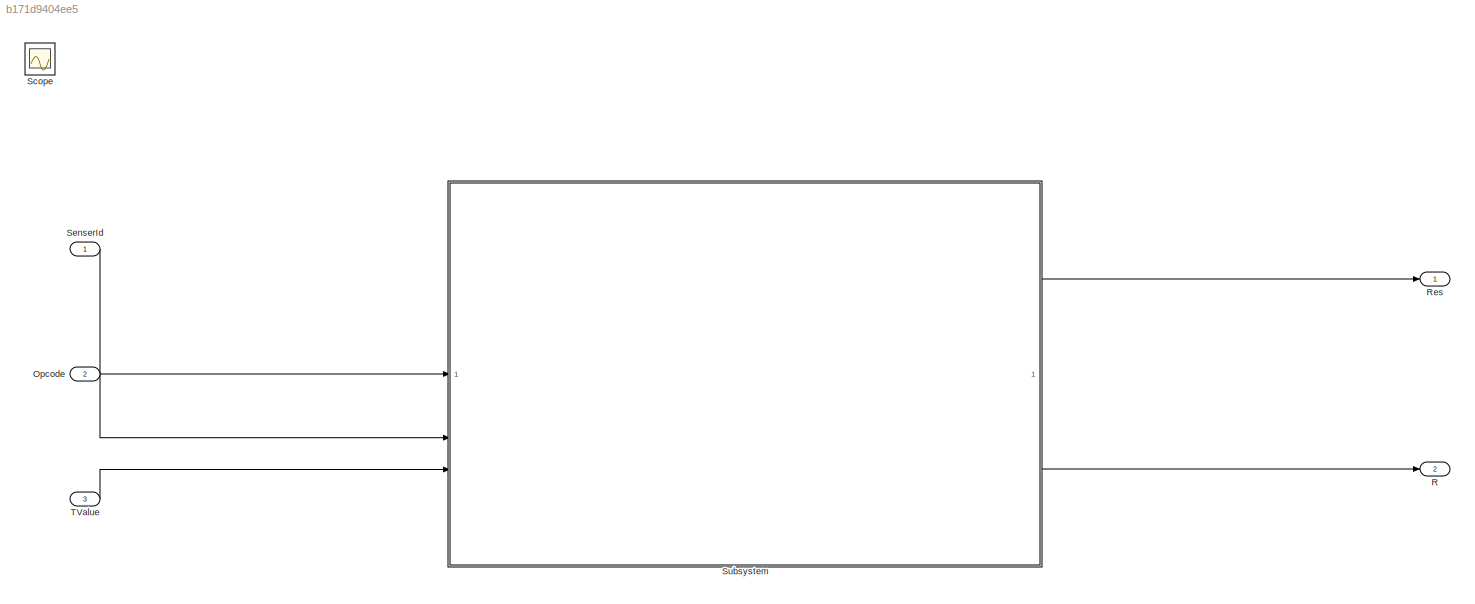
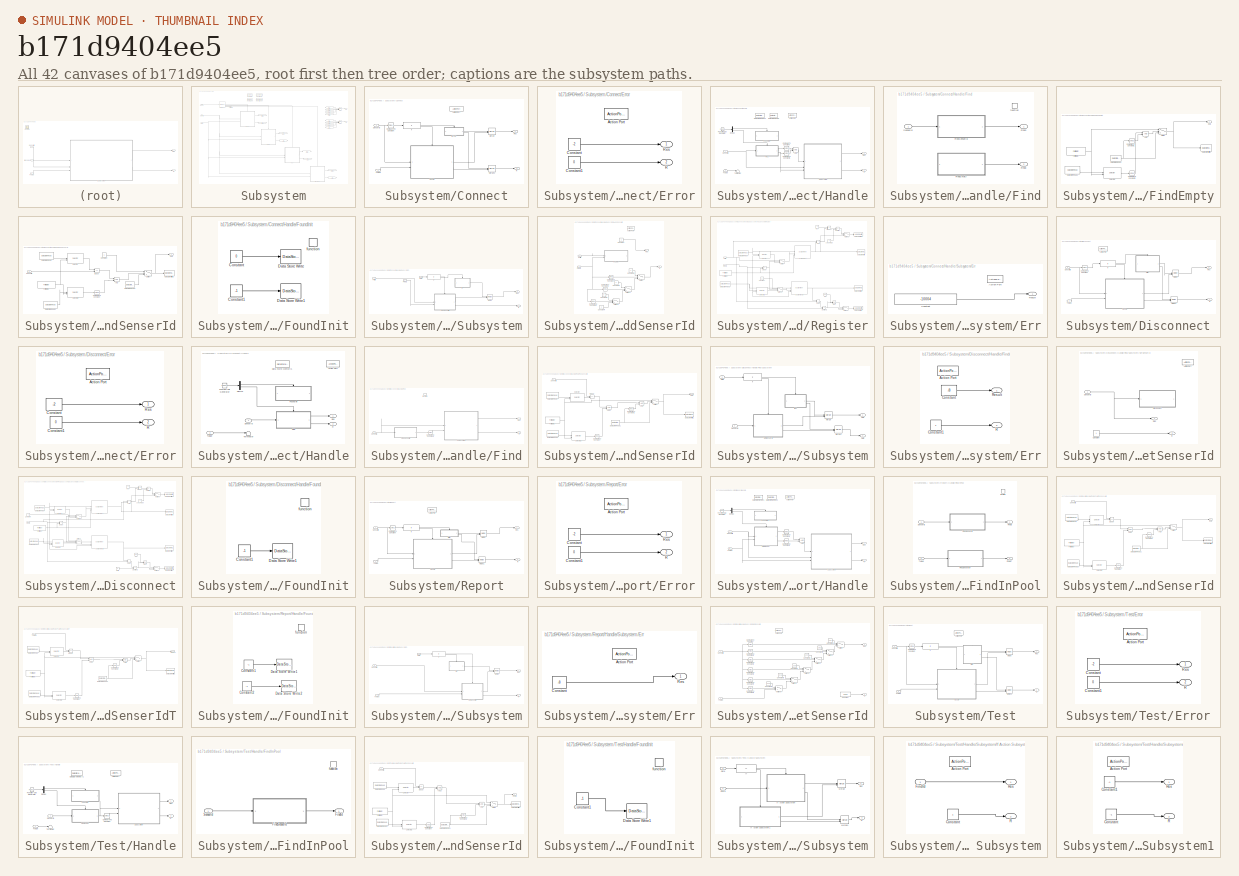
[diagram: thumbnail index - all 42 canvases of the model, root first then tree order]
MODEL slx_b171d9404ee5
KIND model
CONFIG AbsTol = auto
CONFIG EnableMultiTasking = off
CONFIG FixedStep = 1
CONFIG MaxStep = auto
CONFIG MinStep = auto
CONFIG RelTol = 1e-3
CONFIG SampleTimeConstraint = Unconstrained
CONFIG SolverName = FixedStepAuto
CONFIG StartTime = 0.0
CONFIG StopTime = 10.0
BLOCK [Inport] Opcode
  OutDataTypeStr = int32
  Port = 2
BLOCK [Outport] R
  Port = 2
BLOCK [Outport] Res
BLOCK [Scope] Scope
  Floating = off
  IOType = viewer
  NumInputPorts = 1
  ScopeSpecificationString = Simulink.scopes.TimeScopeBlockCfg('CurrentConfiguration', extmgr.ConfigurationSet(extmgr.Configuration('Core','General UI',true),extmgr.Configuration('Core','Source UI',true),extmgr.Configuration('Sources','WiredSimulink',true),extmgr.Configuration('Visuals','Time Domain',true),extmgr.Configuration('Tools','Plot Navigation',true),extmgr.Configuration('Tools','Measurements',true,'Version','2022b'))...<+49ch>
BLOCK [Inport] SenserId
  OutDataTypeStr = int32
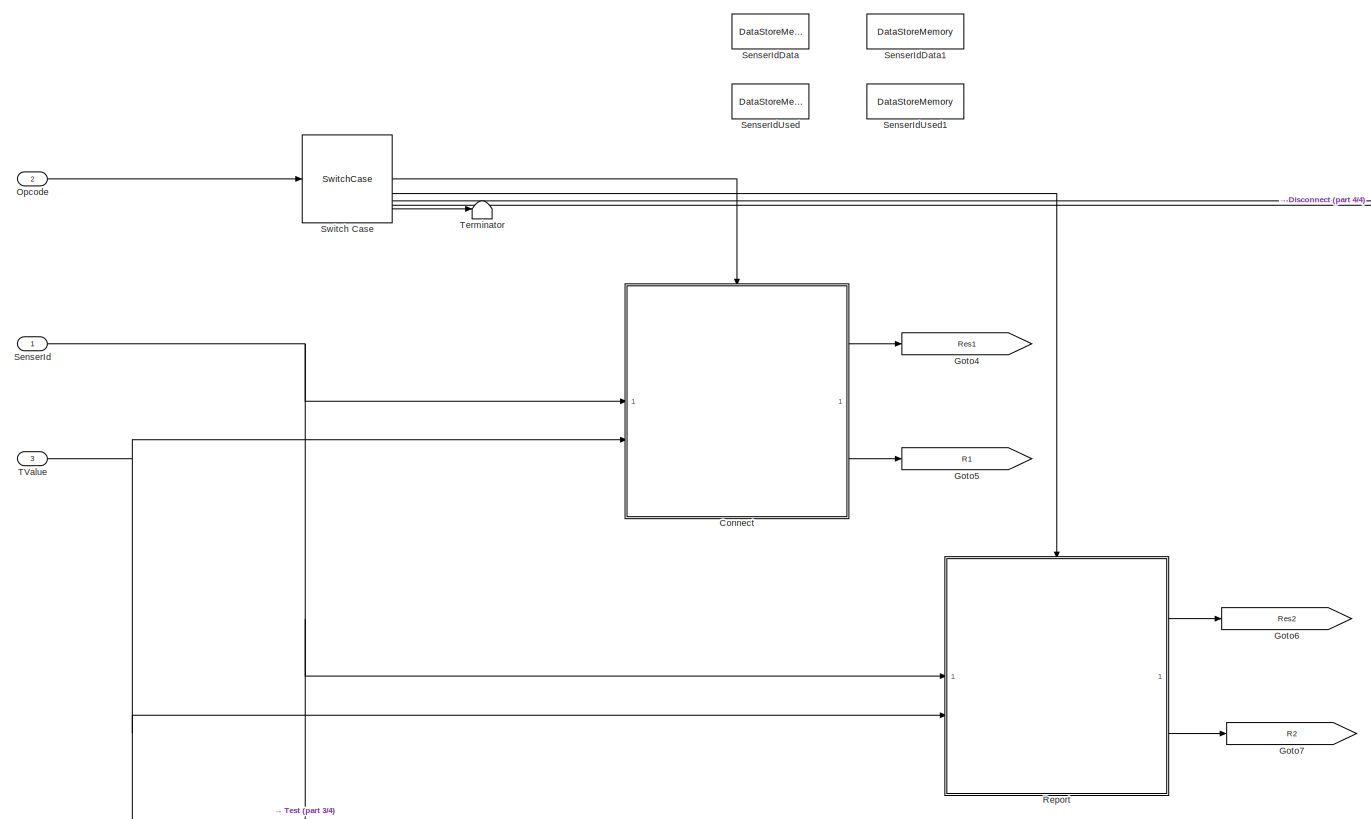
[diagram: Subsystem - part 1/4, top left region]
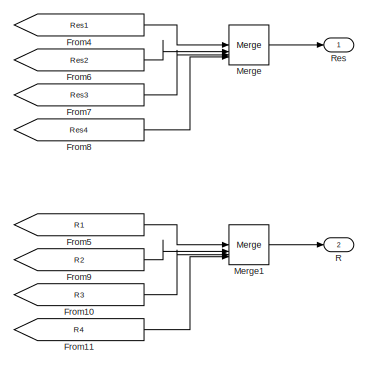
[diagram: Subsystem - part 2/4, top right region]
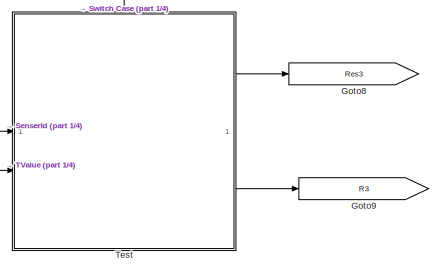
[diagram: Subsystem - part 3/4, bottom center region]
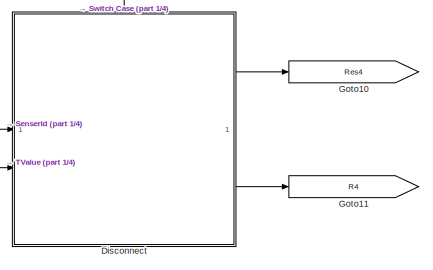
[diagram: Subsystem - part 4/4, bottom right region]
BLOCK [SubSystem] Subsystem
BLOCK [SubSystem] Subsystem/Connect
  TreatAsAtomicUnit = on
BLOCK [ActionPort] Subsystem/Connect/Action Port
  ActionPortLabel = case [ 1 ]:
BLOCK [Reference] Subsystem/Connect/Compare To Constant  REF=simulink/Logic and Bit
Operations/Compare
To Constant
  SourceBlock = simulink/Logic and Bit\nOperations/Compare\nTo Constant
  SourceType = Compare To Constant
BLOCK [SubSystem] Subsystem/Connect/Error
  TreatAsAtomicUnit = on
BLOCK [ActionPort] Subsystem/Connect/Error/Action Port
  ActionPortLabel = if(u1 ~= 0)
BLOCK [Constant] Subsystem/Connect/Error/Constant
  OutDataTypeStr = int32
  Value = -2
BLOCK [Constant] Subsystem/Connect/Error/Constant1
  OutDataTypeStr = int32
  Value = 0
BLOCK [Outport] Subsystem/Connect/Error/R
  Port = 2
BLOCK [Outport] Subsystem/Connect/Error/Res
BLOCK [SubSystem] Subsystem/Connect/Handle
  TreatAsAtomicUnit = on
BLOCK [Logic] Subsystem/Connect/Handle/AND
  AllPortsSameDT = off
  IconShape = distinctive
  OutDataTypeStr = boolean
BLOCK [ActionPort] Subsystem/Connect/Handle/Action Port
  ActionPortLabel = else
BLOCK [Reference] Subsystem/Connect/Handle/Compare To Constant  REF=simulink/Logic and Bit
Operations/Compare
To Constant
  SourceBlock = simulink/Logic and Bit\nOperations/Compare\nTo Constant
  SourceType = Compare To Constant
BLOCK [Reference] Subsystem/Connect/Handle/Compare To Constant1  REF=simulink/Logic and Bit
Operations/Compare
To Constant
  SourceBlock = simulink/Logic and Bit\nOperations/Compare\nTo Constant
  SourceType = Compare To Constant
BLOCK [DataStoreMemory] Subsystem/Connect/Handle/Data Store Memory
  DataStoreName = Found
  OutDataTypeStr = boolean
  ShowAdditionalParam = off
  WriteAfterWriteMsg = warning
BLOCK [DataStoreMemory] Subsystem/Connect/Handle/Data Store Memory1
  DataStoreName = FoundE
  InitialValue = -1
  OutDataTypeStr = int32
  ShowAdditionalParam = off
  WriteAfterWriteMsg = warning
BLOCK [Demux] Subsystem/Connect/Handle/Demux
  Outputs = 2
BLOCK [SubSystem] Subsystem/Connect/Handle/Find
BLOCK [Outport] Subsystem/Connect/Handle/Find/FindE
  Port = 2
BLOCK [SubSystem] Subsystem/Connect/Handle/Find/FindEmpty
  TreatAsAtomicUnit = on
BLOCK [Logic] Subsystem/Connect/Handle/Find/FindEmpty/AND
  AllPortsSameDT = off
  IconShape = distinctive
  OutDataTypeStr = boolean
BLOCK [Reference] Subsystem/Connect/Handle/Find/FindEmpty/Compare To Constant1  REF=simulink/Logic and Bit
Operations/Compare
To Constant
  SourceBlock = simulink/Logic and Bit\nOperations/Compare\nTo Constant
  SourceType = Compare To Constant
BLOCK [Reference] Subsystem/Connect/Handle/Find/FindEmpty/Compare To Constant2  REF=simulink/Logic and Bit
Operations/Compare
To Constant
  SourceBlock = simulink/Logic and Bit\nOperations/Compare\nTo Constant
  SourceType = Compare To Constant
BLOCK [DataStoreRead] Subsystem/Connect/Handle/Find/FindEmpty/Data Store Read1
  DataStoreName = FoundE
  IndexOptions = Index vector (dialog)
  Indices = 1
  OutputSizes = 1
BLOCK [DataStoreRead] Subsystem/Connect/Handle/Find/FindEmpty/Data Store Read2
  DataStoreName = SenserIdUsed
  IndexOptions = Index vector (dialog)
  Indices = 1
  OutputSizes = 1
BLOCK [DataStoreWrite] Subsystem/Connect/Handle/Find/FindEmpty/Data Store Write1
  DataStoreName = FoundE
  IndexOptions = Index vector (dialog)
  Indices = 1
  OutputSizes = 1
BLOCK [ForIterator] Subsystem/Connect/Handle/Find/FindEmpty/For Iterator
  IndexMode = Zero-based
  IterationLimit = POOL_SIZE
BLOCK [Outport] Subsystem/Connect/Handle/Find/FindEmpty/Out1
BLOCK [Selector] Subsystem/Connect/Handle/Find/FindEmpty/Selector1
  IndexMode = Zero-based
  IndexOptions = Index vector (port)
  Indices = [1 3]
  InputPortWidth = POOL_SIZE
  OutputSizes = 1
BLOCK [Switch] Subsystem/Connect/Handle/Find/FindEmpty/Switch
  Criteria = u2 ~= 0
  InputSameDT = off
  SaturateOnIntegerOverflow = off
BLOCK [Outport] Subsystem/Connect/Handle/Find/FindS
BLOCK [SubSystem] Subsystem/Connect/Handle/Find/FindSenserId
  TreatAsAtomicUnit = on
BLOCK [Logic] Subsystem/Connect/Handle/Find/FindSenserId/AND
  AllPortsSameDT = off
  IconShape = distinctive
  OutDataTypeStr = boolean
BLOCK [Reference] Subsystem/Connect/Handle/Find/FindSenserId/Compare To Constant  REF=simulink/Logic and Bit
Operations/Compare
To Constant
  SourceBlock = simulink/Logic and Bit\nOperations/Compare\nTo Constant
  SourceType = Compare To Constant
BLOCK [Constant] Subsystem/Connect/Handle/Find/FindSenserId/Constant
  OutDataTypeStr = boolean
BLOCK [DataStoreRead] Subsystem/Connect/Handle/Find/FindSenserId/Data Store Read
  DataStoreName = SenserIdUsed
  IndexOptions = Index vector (dialog)
  Indices = 1
  OutputSizes = 1
BLOCK [DataStoreRead] Subsystem/Connect/Handle/Find/FindSenserId/Data Store Read1
  DataStoreName = Found
  IndexOptions = Index vector (dialog)
  Indices = 1
  OutputSizes = 1
BLOCK [DataStoreRead] Subsystem/Connect/Handle/Find/FindSenserId/Data Store Read2
  DataStoreName = SenserIdUsed
  IndexOptions = Index vector (dialog)
  Indices = 1
  OutputSizes = 1
BLOCK [DataStoreWrite] Subsystem/Connect/Handle/Find/FindSenserId/Data Store Write1
  DataStoreName = Found
  IndexOptions = Index vector (dialog)
  Indices = 1
  OutputSizes = 1
BLOCK [RelationalOperator] Subsystem/Connect/Handle/Find/FindSenserId/Equal
  InputSameDT = off
  Operator = ==
  OutDataTypeStr = boolean
  RndMeth = Simplest
BLOCK [ForIterator] Subsystem/Connect/Handle/Find/FindSenserId/For Iterator
  IndexMode = Zero-based
  IterationLimit = POOL_SIZE
BLOCK [Outport] Subsystem/Connect/Handle/Find/FindSenserId/Out1
BLOCK [Selector] Subsystem/Connect/Handle/Find/FindSenserId/Selector
  IndexMode = Zero-based
  IndexOptions = Index vector (port)
  Indices = [1 3]
  InputPortWidth = POOL_SIZE
  OutputSizes = 1
BLOCK [Selector] Subsystem/Connect/Handle/Find/FindSenserId/Selector1
  IndexMode = Zero-based
  IndexOptions = Index vector (port)
  Indices = [1 3]
  InputPortWidth = POOL_SIZE
  OutputSizes = 1
BLOCK [Inport] Subsystem/Connect/Handle/Find/FindSenserId/SenserId
BLOCK [Switch] Subsystem/Connect/Handle/Find/FindSenserId/Switch
  Criteria = u2 ~= 0
  InputSameDT = off
  SaturateOnIntegerOverflow = off
BLOCK [Inport] Subsystem/Connect/Handle/Find/SenserId
BLOCK [TriggerPort] Subsystem/Connect/Handle/Find/function
  StatesWhenEnabling = held
  TriggerType = function-call
  VariantControl = (inherit)
BLOCK [SubSystem] Subsystem/Connect/Handle/FoundInit
BLOCK [Constant] Subsystem/Connect/Handle/FoundInit/Constant
  OutDataTypeStr = boolean
  Value = 0
BLOCK [Constant] Subsystem/Connect/Handle/FoundInit/Constant1
  OutDataTypeStr = int32
  Value = -1
BLOCK [DataStoreWrite] Subsystem/Connect/Handle/FoundInit/Data Store Write
  DataStoreName = Found
  IndexOptions = Index vector (dialog)
  Indices = 1
  OutputSizes = 1
BLOCK [DataStoreWrite] Subsystem/Connect/Handle/FoundInit/Data Store Write1
  DataStoreName = FoundE
  IndexOptions = Index vector (dialog)
  Indices = 1
  OutputSizes = 1
BLOCK [TriggerPort] Subsystem/Connect/Handle/FoundInit/function
  StatesWhenEnabling = held
  TriggerType = function-call
  VariantControl = (inherit)
BLOCK [Reference] Subsystem/Connect/Handle/Function-Call Generator  REF=simulink/Ports &
Subsystems/Function-Call
Generator
  SourceBlock = simulink/Ports &\nSubsystems/Function-Call\nGenerator
  SourceType = Function-Call Generator
BLOCK [Outport] Subsystem/Connect/Handle/R
  Port = 2
BLOCK [Outport] Subsystem/Connect/Handle/Res
BLOCK [Inport] Subsystem/Connect/Handle/SenserId
BLOCK [SubSystem] Subsystem/Connect/Handle/Subsystem
BLOCK [SubSystem] Subsystem/Connect/Handle/Subsystem/AddSenserId
  TreatAsAtomicUnit = on
BLOCK [ActionPort] Subsystem/Connect/Handle/Subsystem/AddSenserId/Action Port
  ActionPortLabel = if(u1 ~= 0)
BLOCK [Reference] Subsystem/Connect/Handle/Subsystem/AddSenserId/Compare To Constant  REF=simulink/Logic and Bit
Operations/Compare
To Constant
  SourceBlock = simulink/Logic and Bit\nOperations/Compare\nTo Constant
  SourceType = Compare To Constant
BLOCK [Reference] Subsystem/Connect/Handle/Subsystem/AddSenserId/Compare To Constant1  REF=simulink/Logic and Bit
Operations/Compare
To Constant
  SourceBlock = simulink/Logic and Bit\nOperations/Compare\nTo Constant
  SourceType = Compare To Constant
BLOCK [Reference] Subsystem/Connect/Handle/Subsystem/AddSenserId/Compare To Constant2  REF=simulink/Logic and Bit
Operations/Compare
To Constant
  SourceBlock = simulink/Logic and Bit\nOperations/Compare\nTo Constant
  SourceType = Compare To Constant
BLOCK [Constant] Subsystem/Connect/Handle/Subsystem/AddSenserId/Constant
  OutDataTypeStr = int32
BLOCK [Constant] Subsystem/Connect/Handle/Subsystem/AddSenserId/Constant1
  OutDataTypeStr = int32
BLOCK [Constant] Subsystem/Connect/Handle/Subsystem/AddSenserId/Constant2
  OutDataTypeStr = int32
  Value = 2
BLOCK [Constant] Subsystem/Connect/Handle/Subsystem/AddSenserId/Constant3
  OutDataTypeStr = int32
  Value = 3
BLOCK [Constant] Subsystem/Connect/Handle/Subsystem/AddSenserId/Constant4
  OutDataTypeStr = int32
  Value = 4
BLOCK [Inport] Subsystem/Connect/Handle/Subsystem/AddSenserId/FindE
  Port = 2
BLOCK [Inport] Subsystem/Connect/Handle/Subsystem/AddSenserId/PortId
BLOCK [Outport] Subsystem/Connect/Handle/Subsystem/AddSenserId/R
  Port = 2
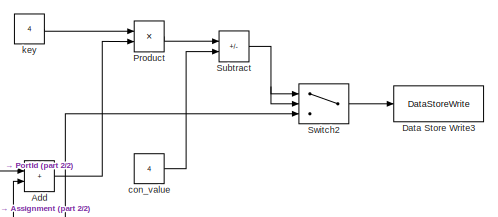
[diagram: Subsystem/Connect/Handle/Subsystem/AddSenserId/Register - part 1/2, top right region]
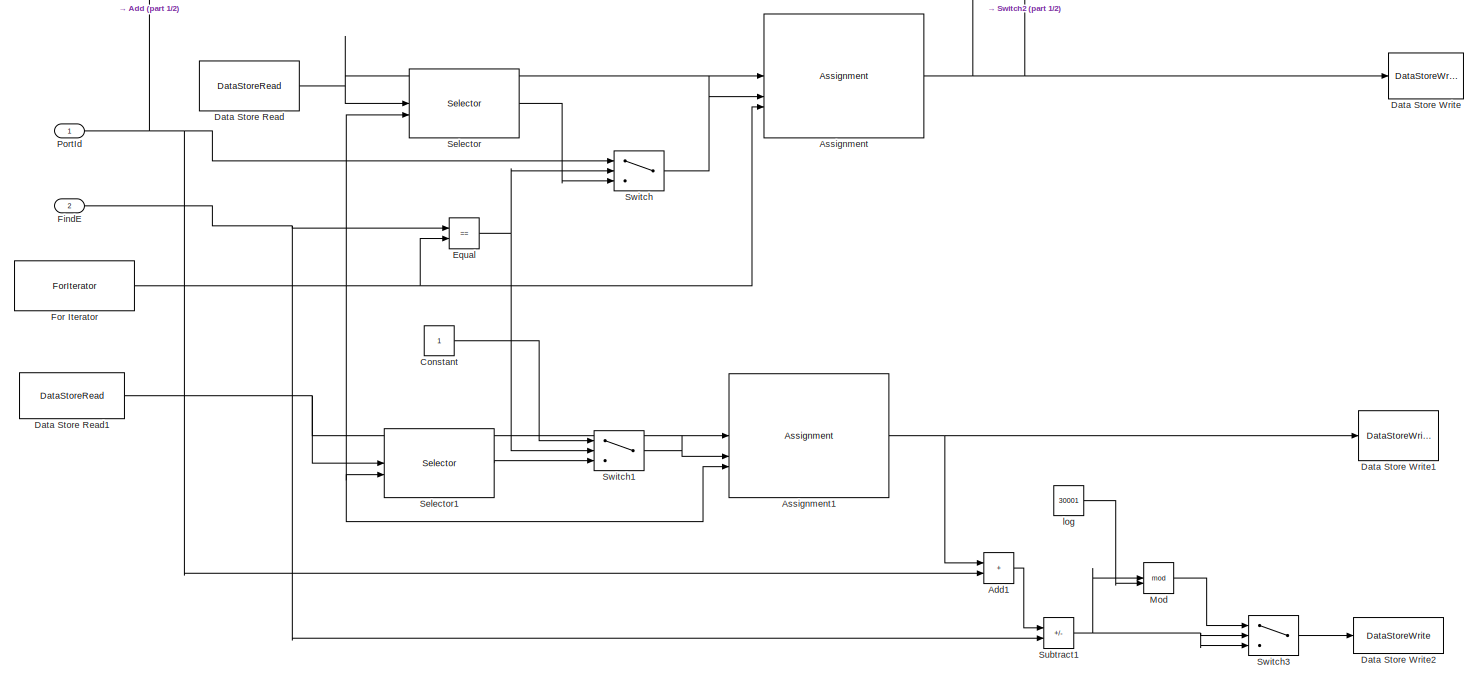
[diagram: Subsystem/Connect/Handle/Subsystem/AddSenserId/Register - part 2/2, most of the canvas]
BLOCK [SubSystem] Subsystem/Connect/Handle/Subsystem/AddSenserId/Register
  TreatAsAtomicUnit = on
BLOCK [Sum] Subsystem/Connect/Handle/Subsystem/AddSenserId/Register/Add
  IconShape = rectangular
  OutDataTypeStr = int32
BLOCK [Sum] Subsystem/Connect/Handle/Subsystem/AddSenserId/Register/Add1
  IconShape = rectangular
  OutDataTypeStr = int32
BLOCK [Assignment] Subsystem/Connect/Handle/Subsystem/AddSenserId/Register/Assignment
  DiagnosticForDimensions = Warning
  IndexMode = Zero-based
  IndexOptions = Index vector (port)
  Indices = 1
  OutputSizes = 1
BLOCK [Assignment] Subsystem/Connect/Handle/Subsystem/AddSenserId/Register/Assignment1
  DiagnosticForDimensions = Warning
  IndexMode = Zero-based
  IndexOptions = Index vector (port)
  Indices = 1
  OutputSizes = 1
BLOCK [Constant] Subsystem/Connect/Handle/Subsystem/AddSenserId/Register/Constant
  OutDataTypeStr = int32
BLOCK [DataStoreRead] Subsystem/Connect/Handle/Subsystem/AddSenserId/Register/Data Store Read
  DataStoreName = SenserIdData
  IndexOptions = Index vector (dialog)
  Indices = 1
  OutputSizes = 1
BLOCK [DataStoreRead] Subsystem/Connect/Handle/Subsystem/AddSenserId/Register/Data Store Read1
  DataStoreName = SenserIdUsed
  IndexOptions = Index vector (dialog)
  Indices = 1
  OutputSizes = 1
BLOCK [DataStoreWrite] Subsystem/Connect/Handle/Subsystem/AddSenserId/Register/Data Store Write
  DataStoreName = SenserIdData
  IndexOptions = Index vector (dialog)
  Indices = 1
  OutputSizes = 1
BLOCK [DataStoreWrite] Subsystem/Connect/Handle/Subsystem/AddSenserId/Register/Data Store Write1
  DataStoreName = SenserIdUsed
  IndexOptions = Index vector (dialog)
  Indices = 1
  OutputSizes = 1
BLOCK [DataStoreWrite] Subsystem/Connect/Handle/Subsystem/AddSenserId/Register/Data Store Write2
  DataStoreName = SenserUsedLog
  IndexOptions = Index vector (dialog)
  Indices = 1
  OutputSizes = 1
BLOCK [DataStoreWrite] Subsystem/Connect/Handle/Subsystem/AddSenserId/Register/Data Store Write3
  DataStoreName = SenserIdConfound
  IndexOptions = Index vector (dialog)
  Indices = 1
  OutputSizes = 1
BLOCK [RelationalOperator] Subsystem/Connect/Handle/Subsystem/AddSenserId/Register/Equal
  InputSameDT = off
  Operator = ==
  OutDataTypeStr = boolean
  RndMeth = Simplest
BLOCK [Inport] Subsystem/Connect/Handle/Subsystem/AddSenserId/Register/FindE
  Port = 2
BLOCK [ForIterator] Subsystem/Connect/Handle/Subsystem/AddSenserId/Register/For Iterator
  IndexMode = Zero-based
  IterationLimit = POOL_SIZE
BLOCK [Math] Subsystem/Connect/Handle/Subsystem/AddSenserId/Register/Mod
  Operator = mod
BLOCK [Inport] Subsystem/Connect/Handle/Subsystem/AddSenserId/Register/PortId
BLOCK [Product] Subsystem/Connect/Handle/Subsystem/AddSenserId/Register/Product
  OutDataTypeStr = int32
BLOCK [Selector] Subsystem/Connect/Handle/Subsystem/AddSenserId/Register/Selector
  IndexMode = Zero-based
  IndexOptions = Index vector (port)
  Indices = [1 3]
  InputPortWidth = POOL_SIZE
  OutputSizes = 1
BLOCK [Selector] Subsystem/Connect/Handle/Subsystem/AddSenserId/Register/Selector1
  IndexMode = Zero-based
  IndexOptions = Index vector (port)
  Indices = [1 3]
  InputPortWidth = POOL_SIZE
  OutputSizes = 1
BLOCK [Sum] Subsystem/Connect/Handle/Subsystem/AddSenserId/Register/Subtract
  IconShape = rectangular
  Inputs = +-
  OutDataTypeStr = int32
BLOCK [Sum] Subsystem/Connect/Handle/Subsystem/AddSenserId/Register/Subtract1
  IconShape = rectangular
  Inputs = +-
  OutDataTypeStr = int32
BLOCK [Switch] Subsystem/Connect/Handle/Subsystem/AddSenserId/Register/Switch
  Criteria = u2 > Threshold
  InputSameDT = off
  SaturateOnIntegerOverflow = off
BLOCK [Switch] Subsystem/Connect/Handle/Subsystem/AddSenserId/Register/Switch1
  Criteria = u2 > Threshold
  InputSameDT = off
  SaturateOnIntegerOverflow = off
BLOCK [Switch] Subsystem/Connect/Handle/Subsystem/AddSenserId/Register/Switch2
  Criteria = u2 > Threshold
  InputSameDT = off
  SaturateOnIntegerOverflow = off
  Threshold = 10001
BLOCK [Switch] Subsystem/Connect/Handle/Subsystem/AddSenserId/Register/Switch3
  Criteria = u2 > Threshold
  InputSameDT = off
  SaturateOnIntegerOverflow = off
  Threshold = 30001
BLOCK [Constant] Subsystem/Connect/Handle/Subsystem/AddSenserId/Register/con_value
  OutDataTypeStr = int32
  Value = 4
BLOCK [Constant] Subsystem/Connect/Handle/Subsystem/AddSenserId/Register/key
  OutDataTypeStr = int32
  Value = 4
BLOCK [Constant] Subsystem/Connect/Handle/Subsystem/AddSenserId/Register/log
  OutDataTypeStr = int32
  Value = 30001
BLOCK [Outport] Subsystem/Connect/Handle/Subsystem/AddSenserId/Res
BLOCK [Switch] Subsystem/Connect/Handle/Subsystem/AddSenserId/Switch
  Criteria = u2 > Threshold
  InputSameDT = off
  SaturateOnIntegerOverflow = off
BLOCK [Switch] Subsystem/Connect/Handle/Subsystem/AddSenserId/Switch1
  Criteria = u2 > Threshold
  InputSameDT = off
  SaturateOnIntegerOverflow = off
BLOCK [Switch] Subsystem/Connect/Handle/Subsystem/AddSenserId/Switch2
  Criteria = u2 > Threshold
  InputSameDT = off
  SaturateOnIntegerOverflow = off
BLOCK [SubSystem] Subsystem/Connect/Handle/Subsystem/Err
  TreatAsAtomicUnit = on
BLOCK [ActionPort] Subsystem/Connect/Handle/Subsystem/Err/Action Port
  ActionPortLabel = else
BLOCK [Constant] Subsystem/Connect/Handle/Subsystem/Err/Constant
  OutDataTypeStr = int32
  Value = -10004
BLOCK [Outport] Subsystem/Connect/Handle/Subsystem/Err/Result
BLOCK [Inport] Subsystem/Connect/Handle/Subsystem/FindE
  Port = 3
BLOCK [Inport] Subsystem/Connect/Handle/Subsystem/Gate
BLOCK [If] Subsystem/Connect/Handle/Subsystem/If
  IfExpression = u1 ~= 0
BLOCK [Merge] Subsystem/Connect/Handle/Subsystem/Merge
BLOCK [Inport] Subsystem/Connect/Handle/Subsystem/PortId
  Port = 2
BLOCK [Outport] Subsystem/Connect/Handle/Subsystem/R
  Port = 2
BLOCK [Outport] Subsystem/Connect/Handle/Subsystem/Res
BLOCK [Inport] Subsystem/Connect/Handle/TValue
  Port = 2
BLOCK [Terminator] Subsystem/Connect/Handle/Terminator
BLOCK [If] Subsystem/Connect/If
  IfExpression = u1 ~= 0
BLOCK [Merge] Subsystem/Connect/Merge
BLOCK [Merge] Subsystem/Connect/Merge1
BLOCK [Outport] Subsystem/Connect/R
  Port = 2
BLOCK [Outport] Subsystem/Connect/Res
BLOCK [Inport] Subsystem/Connect/SenserId
BLOCK [Inport] Subsystem/Connect/TValue
  Port = 2
BLOCK [SubSystem] Subsystem/Disconnect
  TreatAsAtomicUnit = on
BLOCK [ActionPort] Subsystem/Disconnect/Action Port
  ActionPortLabel = case [ 5 ]:
BLOCK [Reference] Subsystem/Disconnect/Compare To Constant  REF=simulink/Logic and Bit
Operations/Compare
To Constant
  SourceBlock = simulink/Logic and Bit\nOperations/Compare\nTo Constant
  SourceType = Compare To Constant
BLOCK [SubSystem] Subsystem/Disconnect/Error
  TreatAsAtomicUnit = on
BLOCK [ActionPort] Subsystem/Disconnect/Error/Action Port
  ActionPortLabel = if(u1 ~= 0)
BLOCK [Constant] Subsystem/Disconnect/Error/Constant
  OutDataTypeStr = int32
  Value = -2
BLOCK [Constant] Subsystem/Disconnect/Error/Constant1
  OutDataTypeStr = int32
  Value = 0
BLOCK [Outport] Subsystem/Disconnect/Error/R
  Port = 2
BLOCK [Outport] Subsystem/Disconnect/Error/Res
BLOCK [SubSystem] Subsystem/Disconnect/Handle
  TreatAsAtomicUnit = on
BLOCK [ActionPort] Subsystem/Disconnect/Handle/Action Port
  ActionPortLabel = else
BLOCK [DataStoreMemory] Subsystem/Disconnect/Handle/Data Store Memory1
  DataStoreName = FoundId
  InitialValue = -1
  OutDataTypeStr = int32
  ShowAdditionalParam = off
  WriteAfterWriteMsg = warning
BLOCK [Demux] Subsystem/Disconnect/Handle/Demux
  Outputs = 2
BLOCK [SubSystem] Subsystem/Disconnect/Handle/Find
BLOCK [Reference] Subsystem/Disconnect/Handle/Find/Compare To Constant1  REF=simulink/Logic and Bit
Operations/Compare
To Constant
  SourceBlock = simulink/Logic and Bit\nOperations/Compare\nTo Constant
  SourceType = Compare To Constant
BLOCK [SubSystem] Subsystem/Disconnect/Handle/Find/FindSenserId
  TreatAsAtomicUnit = on
BLOCK [Logic] Subsystem/Disconnect/Handle/Find/FindSenserId/AND
  AllPortsSameDT = off
  IconShape = distinctive
  OutDataTypeStr = boolean
BLOCK [Logic] Subsystem/Disconnect/Handle/Find/FindSenserId/AND1
  AllPortsSameDT = off
  IconShape = distinctive
  OutDataTypeStr = boolean
BLOCK [Reference] Subsystem/Disconnect/Handle/Find/FindSenserId/Compare To Constant  REF=simulink/Logic and Bit
Operations/Compare
To Constant
  SourceBlock = simulink/Logic and Bit\nOperations/Compare\nTo Constant
  SourceType = Compare To Constant
BLOCK [Reference] Subsystem/Disconnect/Handle/Find/FindSenserId/Compare To Constant1  REF=simulink/Logic and Bit
Operations/Compare
To Constant
  SourceBlock = simulink/Logic and Bit\nOperations/Compare\nTo Constant
  SourceType = Compare To Constant
BLOCK [DataStoreRead] Subsystem/Disconnect/Handle/Find/FindSenserId/Data Store Read
  DataStoreName = SenserIdData
  IndexOptions = Index vector (dialog)
  Indices = 1
  OutputSizes = 1
BLOCK [DataStoreRead] Subsystem/Disconnect/Handle/Find/FindSenserId/Data Store Read1
  DataStoreName = FoundId
  IndexOptions = Index vector (dialog)
  Indices = 1
  OutputSizes = 1
BLOCK [DataStoreRead] Subsystem/Disconnect/Handle/Find/FindSenserId/Data Store Read2
  DataStoreName = SenserIdUsed
  IndexOptions = Index vector (dialog)
  Indices = 1
  OutputSizes = 1
BLOCK [DataStoreWrite] Subsystem/Disconnect/Handle/Find/FindSenserId/Data Store Write1
  DataStoreName = FoundId
  IndexOptions = Index vector (dialog)
  Indices = 1
  OutputSizes = 1
BLOCK [RelationalOperator] Subsystem/Disconnect/Handle/Find/FindSenserId/Equal
  InputSameDT = off
  Operator = ==
  OutDataTypeStr = boolean
  RndMeth = Simplest
BLOCK [ForIterator] Subsystem/Disconnect/Handle/Find/FindSenserId/For Iterator
  IndexMode = Zero-based
  IterationLimit = POOL_SIZE
BLOCK [Outport] Subsystem/Disconnect/Handle/Find/FindSenserId/Out1
BLOCK [Selector] Subsystem/Disconnect/Handle/Find/FindSenserId/Selector
  IndexMode = Zero-based
  IndexOptions = Index vector (port)
  Indices = [1 3]
  InputPortWidth = POOL_SIZE
  OutputSizes = 1
BLOCK [Selector] Subsystem/Disconnect/Handle/Find/FindSenserId/Selector1
  IndexMode = Zero-based
  IndexOptions = Index vector (port)
  Indices = [1 3]
  InputPortWidth = POOL_SIZE
  OutputSizes = 1
BLOCK [Inport] Subsystem/Disconnect/Handle/Find/FindSenserId/SenserId
BLOCK [Switch] Subsystem/Disconnect/Handle/Find/FindSenserId/Switch
  Criteria = u2 ~= 0
  InputSameDT = off
  SaturateOnIntegerOverflow = off
BLOCK [Outport] Subsystem/Disconnect/Handle/Find/R
  Port = 2
BLOCK [Outport] Subsystem/Disconnect/Handle/Find/Res
BLOCK [Inport] Subsystem/Disconnect/Handle/Find/SenserId
BLOCK [SubSystem] Subsystem/Disconnect/Handle/Find/Subsystem
BLOCK [SubSystem] Subsystem/Disconnect/Handle/Find/Subsystem/Err
  TreatAsAtomicUnit = on
BLOCK [ActionPort] Subsystem/Disconnect/Handle/Find/Subsystem/Err/Action Port
  ActionPortLabel = if(u1 ~= 0)
BLOCK [Constant] Subsystem/Disconnect/Handle/Find/Subsystem/Err/Constant
  OutDataTypeStr = int32
  Value = -8
BLOCK [Constant] Subsystem/Disconnect/Handle/Find/Subsystem/Err/Constant1
  OutDataTypeStr = int32
BLOCK [Outport] Subsystem/Disconnect/Handle/Find/Subsystem/Err/R
  Port = 2
BLOCK [Outport] Subsystem/Disconnect/Handle/Find/Subsystem/Err/Result
BLOCK [Inport] Subsystem/Disconnect/Handle/Find/Subsystem/Gate
  Port = 2
BLOCK [If] Subsystem/Disconnect/Handle/Find/Subsystem/If
  IfExpression = u1 ~= 0
BLOCK [Merge] Subsystem/Disconnect/Handle/Find/Subsystem/Merge
BLOCK [Merge] Subsystem/Disconnect/Handle/Find/Subsystem/Merge1
BLOCK [Outport] Subsystem/Disconnect/Handle/Find/Subsystem/Out1
BLOCK [Outport] Subsystem/Disconnect/Handle/Find/Subsystem/Out2
  Port = 2
BLOCK [Inport] Subsystem/Disconnect/Handle/Find/Subsystem/SenserId
BLOCK [SubSystem] Subsystem/Disconnect/Handle/Find/Subsystem/SetSenserId
  TreatAsAtomicUnit = on
BLOCK [ActionPort] Subsystem/Disconnect/Handle/Find/Subsystem/SetSenserId/Action Port
  ActionPortLabel = else
BLOCK [Constant] Subsystem/Disconnect/Handle/Find/Subsystem/SetSenserId/Constant
  OutDataTypeStr = int32
BLOCK [SubSystem] Subsystem/Disconnect/Handle/Find/Subsystem/SetSenserId/Disconnect
  TreatAsAtomicUnit = on
BLOCK [Sum] Subsystem/Disconnect/Handle/Find/Subsystem/SetSenserId/Disconnect/Add
  IconShape = rectangular
  OutDataTypeStr = int32
BLOCK [Sum] Subsystem/Disconnect/Handle/Find/Subsystem/SetSenserId/Disconnect/Add1
  IconShape = rectangular
  OutDataTypeStr = int32
BLOCK [Assignment] Subsystem/Disconnect/Handle/Find/Subsystem/SetSenserId/Disconnect/Assignment
  DiagnosticForDimensions = Warning
  IndexMode = Zero-based
  IndexOptions = Index vector (port)
  Indices = 1
  OutputSizes = 1
BLOCK [Assignment] Subsystem/Disconnect/Handle/Find/Subsystem/SetSenserId/Disconnect/Assignment1
  DiagnosticForDimensions = Warning
  IndexMode = Zero-based
  IndexOptions = Index vector (port)
  Indices = 1
  OutputSizes = 1
BLOCK [Constant] Subsystem/Disconnect/Handle/Find/Subsystem/SetSenserId/Disconnect/Constant
  OutDataTypeStr = int32
  Value = 0
BLOCK [DataStoreRead] Subsystem/Disconnect/Handle/Find/Subsystem/SetSenserId/Disconnect/Data Store Read
  DataStoreName = SenserIdData
  IndexOptions = Index vector (dialog)
  Indices = 1
  OutputSizes = 1
BLOCK [DataStoreRead] Subsystem/Disconnect/Handle/Find/Subsystem/SetSenserId/Disconnect/Data Store Read2
  DataStoreName = SenserIdUsed
  IndexOptions = Index vector (dialog)
  Indices = 1
  OutputSizes = 1
BLOCK [DataStoreWrite] Subsystem/Disconnect/Handle/Find/Subsystem/SetSenserId/Disconnect/Data Store Write2
  DataStoreName = SenserIdData
  IndexOptions = Index vector (dialog)
  Indices = 1
  OutputSizes = 1
BLOCK [DataStoreWrite] Subsystem/Disconnect/Handle/Find/Subsystem/SetSenserId/Disconnect/Data Store Write3
  DataStoreName = SenserIdUsed
  IndexOptions = Index vector (dialog)
  Indices = 1
  OutputSizes = 1
BLOCK [DataStoreWrite] Subsystem/Disconnect/Handle/Find/Subsystem/SetSenserId/Disconnect/Data Store Write4
  DataStoreName = SenserUsedLog
  IndexOptions = Index vector (dialog)
  Indices = 1
  OutputSizes = 1
BLOCK [DataStoreWrite] Subsystem/Disconnect/Handle/Find/Subsystem/SetSenserId/Disconnect/Data Store Write5
  DataStoreName = SenserIdConfound
  IndexOptions = Index vector (dialog)
  Indices = 1
  OutputSizes = 1
BLOCK [RelationalOperator] Subsystem/Disconnect/Handle/Find/Subsystem/SetSenserId/Disconnect/Equal
  InputSameDT = off
  Operator = ==
  OutDataTypeStr = boolean
  RndMeth = Simplest
BLOCK [Inport] Subsystem/Disconnect/Handle/Find/Subsystem/SetSenserId/Disconnect/FindId
BLOCK [ForIterator] Subsystem/Disconnect/Handle/Find/Subsystem/SetSenserId/Disconnect/For Iterator
  IndexMode = Zero-based
  IterationLimit = POOL_SIZE
BLOCK [Math] Subsystem/Disconnect/Handle/Find/Subsystem/SetSenserId/Disconnect/Mod
  Operator = mod
BLOCK [Product] Subsystem/Disconnect/Handle/Find/Subsystem/SetSenserId/Disconnect/Product
  OutDataTypeStr = int32
BLOCK [Selector] Subsystem/Disconnect/Handle/Find/Subsystem/SetSenserId/Disconnect/Selector
  IndexMode = Zero-based
  IndexOptions = Index vector (port)
  Indices = [1 3]
  InputPortWidth = POOL_SIZE
  OutputSizes = 1
BLOCK [Selector] Subsystem/Disconnect/Handle/Find/Subsystem/SetSenserId/Disconnect/Selector1
  IndexMode = Zero-based
  IndexOptions = Index vector (port)
  Indices = [1 3]
  InputPortWidth = POOL_SIZE
  OutputSizes = 1
BLOCK [Sum] Subsystem/Disconnect/Handle/Find/Subsystem/SetSenserId/Disconnect/Subtract
  IconShape = rectangular
  Inputs = +-
  OutDataTypeStr = int32
BLOCK [Sum] Subsystem/Disconnect/Handle/Find/Subsystem/SetSenserId/Disconnect/Subtract1
  IconShape = rectangular
  Inputs = +-
  OutDataTypeStr = int32
BLOCK [Switch] Subsystem/Disconnect/Handle/Find/Subsystem/SetSenserId/Disconnect/Switch
  Criteria = u2 > Threshold
  InputSameDT = off
  SaturateOnIntegerOverflow = off
BLOCK [Switch] Subsystem/Disconnect/Handle/Find/Subsystem/SetSenserId/Disconnect/Switch1
  Criteria = u2 > Threshold
  InputSameDT = off
  SaturateOnIntegerOverflow = off
BLOCK [Switch] Subsystem/Disconnect/Handle/Find/Subsystem/SetSenserId/Disconnect/Switch2
  Criteria = u2 > Threshold
  InputSameDT = off
  SaturateOnIntegerOverflow = off
  Threshold = 10001
BLOCK [Switch] Subsystem/Disconnect/Handle/Find/Subsystem/SetSenserId/Disconnect/Switch3
  Criteria = u2 > Threshold
  InputSameDT = off
  SaturateOnIntegerOverflow = off
  Threshold = 30001
BLOCK [Constant] Subsystem/Disconnect/Handle/Find/Subsystem/SetSenserId/Disconnect/con_value
  OutDataTypeStr = int32
  Value = 4
BLOCK [Constant] Subsystem/Disconnect/Handle/Find/Subsystem/SetSenserId/Disconnect/delta
  OutDataTypeStr = int32
  Value = 10
BLOCK [Constant] Subsystem/Disconnect/Handle/Find/Subsystem/SetSenserId/Disconnect/key
  OutDataTypeStr = int32
  Value = 4
BLOCK [Constant] Subsystem/Disconnect/Handle/Find/Subsystem/SetSenserId/Disconnect/log
  OutDataTypeStr = int32
  Value = 30001
BLOCK [Outport] Subsystem/Disconnect/Handle/Find/Subsystem/SetSenserId/R
  Port = 2
BLOCK [Outport] Subsystem/Disconnect/Handle/Find/Subsystem/SetSenserId/Res
BLOCK [Inport] Subsystem/Disconnect/Handle/Find/Subsystem/SetSenserId/SenserId
BLOCK [TriggerPort] Subsystem/Disconnect/Handle/Find/function
  StatesWhenEnabling = held
  TriggerType = function-call
  VariantControl = (inherit)
BLOCK [SubSystem] Subsystem/Disconnect/Handle/FoundInit
BLOCK [Constant] Subsystem/Disconnect/Handle/FoundInit/Constant1
  OutDataTypeStr = int32
  Value = -1
BLOCK [DataStoreWrite] Subsystem/Disconnect/Handle/FoundInit/Data Store Write1
  DataStoreName = FoundId
  IndexOptions = Index vector (dialog)
  Indices = 1
  OutputSizes = 1
BLOCK [TriggerPort] Subsystem/Disconnect/Handle/FoundInit/function
  StatesWhenEnabling = held
  TriggerType = function-call
  VariantControl = (inherit)
BLOCK [Reference] Subsystem/Disconnect/Handle/Function-Call Generator  REF=simulink/Ports &
Subsystems/Function-Call
Generator
  SourceBlock = simulink/Ports &\nSubsystems/Function-Call\nGenerator
  SourceType = Function-Call Generator
BLOCK [Outport] Subsystem/Disconnect/Handle/R
  Port = 2
BLOCK [Outport] Subsystem/Disconnect/Handle/Res
BLOCK [Inport] Subsystem/Disconnect/Handle/SenserId
BLOCK [Inport] Subsystem/Disconnect/Handle/TValue
  Port = 2
BLOCK [Terminator] Subsystem/Disconnect/Handle/Terminator
BLOCK [If] Subsystem/Disconnect/If
  IfExpression = u1 ~= 0
BLOCK [Merge] Subsystem/Disconnect/Merge
BLOCK [Merge] Subsystem/Disconnect/Merge1
BLOCK [Outport] Subsystem/Disconnect/R
  Port = 2
BLOCK [Outport] Subsystem/Disconnect/Res
BLOCK [Inport] Subsystem/Disconnect/SenserId
BLOCK [Inport] Subsystem/Disconnect/TValue
  Port = 2
BLOCK [From] Subsystem/From10
  GotoTag = R3
BLOCK [From] Subsystem/From11
  GotoTag = R4
BLOCK [From] Subsystem/From4
  GotoTag = Res1
BLOCK [From] Subsystem/From5
  GotoTag = R1
BLOCK [From] Subsystem/From6
  GotoTag = Res2
BLOCK [From] Subsystem/From7
  GotoTag = Res3
BLOCK [From] Subsystem/From8
  GotoTag = Res4
BLOCK [From] Subsystem/From9
  GotoTag = R2
BLOCK [Goto] Subsystem/Goto10
  GotoTag = Res4
BLOCK [Goto] Subsystem/Goto11
  GotoTag = R4
BLOCK [Goto] Subsystem/Goto4
  GotoTag = Res1
BLOCK [Goto] Subsystem/Goto5
  GotoTag = R1
BLOCK [Goto] Subsystem/Goto6
  GotoTag = Res2
BLOCK [Goto] Subsystem/Goto7
  GotoTag = R2
BLOCK [Goto] Subsystem/Goto8
  GotoTag = Res3
BLOCK [Goto] Subsystem/Goto9
  GotoTag = R3
BLOCK [Merge] Subsystem/Merge
  Inputs = 4
BLOCK [Merge] Subsystem/Merge1
  Inputs = 4
BLOCK [Inport] Subsystem/Opcode
  Port = 2
BLOCK [Outport] Subsystem/R
  Port = 2
BLOCK [SubSystem] Subsystem/Report
  TreatAsAtomicUnit = on
BLOCK [ActionPort] Subsystem/Report/Action Port
  ActionPortLabel = case [ 3 ]:
BLOCK [Reference] Subsystem/Report/Compare To Constant  REF=simulink/Logic and Bit
Operations/Compare
To Constant
  SourceBlock = simulink/Logic and Bit\nOperations/Compare\nTo Constant
  SourceType = Compare To Constant
BLOCK [SubSystem] Subsystem/Report/Error
  TreatAsAtomicUnit = on
BLOCK [ActionPort] Subsystem/Report/Error/Action Port
  ActionPortLabel = if(u1 ~= 0)
BLOCK [Constant] Subsystem/Report/Error/Constant
  OutDataTypeStr = int32
  Value = -2
BLOCK [Constant] Subsystem/Report/Error/Constant1
  OutDataTypeStr = int32
  Value = 0
BLOCK [Outport] Subsystem/Report/Error/R
  Port = 2
BLOCK [Outport] Subsystem/Report/Error/Res
BLOCK [SubSystem] Subsystem/Report/Handle
  TreatAsAtomicUnit = on
BLOCK [Logic] Subsystem/Report/Handle/AND
  AllPortsSameDT = off
  IconShape = distinctive
  OutDataTypeStr = boolean
BLOCK [ActionPort] Subsystem/Report/Handle/Action Port
  ActionPortLabel = else
BLOCK [Reference] Subsystem/Report/Handle/Compare To Constant1  REF=simulink/Logic and Bit
Operations/Compare
To Constant
  SourceBlock = simulink/Logic and Bit\nOperations/Compare\nTo Constant
  SourceType = Compare To Constant
BLOCK [Reference] Subsystem/Report/Handle/Compare To Constant2  REF=simulink/Logic and Bit
Operations/Compare
To Constant
  SourceBlock = simulink/Logic and Bit\nOperations/Compare\nTo Constant
  SourceType = Compare To Constant
BLOCK [DataStoreMemory] Subsystem/Report/Handle/Data Store Memory1
  DataStoreName = FoundId
  InitialValue = -1
  OutDataTypeStr = int32
  ShowAdditionalParam = off
  WriteAfterWriteMsg = warning
BLOCK [DataStoreMemory] Subsystem/Report/Handle/Data Store Memory2
  DataStoreName = FoundIdT
  InitialValue = -1
  OutDataTypeStr = int32
  ShowAdditionalParam = off
  WriteAfterWriteMsg = warning
BLOCK [Demux] Subsystem/Report/Handle/Demux
  Outputs = 2
BLOCK [SubSystem] Subsystem/Report/Handle/FindInPool
BLOCK [Outport] Subsystem/Report/Handle/FindInPool/FindId
BLOCK [Outport] Subsystem/Report/Handle/FindInPool/FindIdT
  Port = 2
BLOCK [SubSystem] Subsystem/Report/Handle/FindInPool/FindSenserId
  TreatAsAtomicUnit = on
BLOCK [Logic] Subsystem/Report/Handle/FindInPool/FindSenserId/AND
  AllPortsSameDT = off
  IconShape = distinctive
  OutDataTypeStr = boolean
BLOCK [Logic] Subsystem/Report/Handle/FindInPool/FindSenserId/AND1
  AllPortsSameDT = off
  IconShape = distinctive
  OutDataTypeStr = boolean
BLOCK [Reference] Subsystem/Report/Handle/FindInPool/FindSenserId/Compare To Constant  REF=simulink/Logic and Bit
Operations/Compare
To Constant
  SourceBlock = simulink/Logic and Bit\nOperations/Compare\nTo Constant
  SourceType = Compare To Constant
BLOCK [Reference] Subsystem/Report/Handle/FindInPool/FindSenserId/Compare To Constant1  REF=simulink/Logic and Bit
Operations/Compare
To Constant
  SourceBlock = simulink/Logic and Bit\nOperations/Compare\nTo Constant
  SourceType = Compare To Constant
BLOCK [DataStoreRead] Subsystem/Report/Handle/FindInPool/FindSenserId/Data Store Read
  DataStoreName = SenserIdData
  IndexOptions = Index vector (dialog)
  Indices = 1
  OutputSizes = 1
BLOCK [DataStoreRead] Subsystem/Report/Handle/FindInPool/FindSenserId/Data Store Read1
  DataStoreName = FoundId
  IndexOptions = Index vector (dialog)
  Indices = 1
  OutputSizes = 1
BLOCK [DataStoreRead] Subsystem/Report/Handle/FindInPool/FindSenserId/Data Store Read2
  DataStoreName = SenserIdUsed
  IndexOptions = Index vector (dialog)
  Indices = 1
  OutputSizes = 1
BLOCK [DataStoreWrite] Subsystem/Report/Handle/FindInPool/FindSenserId/Data Store Write1
  DataStoreName = FoundId
  IndexOptions = Index vector (dialog)
  Indices = 1
  OutputSizes = 1
BLOCK [RelationalOperator] Subsystem/Report/Handle/FindInPool/FindSenserId/Equal
  InputSameDT = off
  Operator = ==
  OutDataTypeStr = boolean
  RndMeth = Simplest
BLOCK [ForIterator] Subsystem/Report/Handle/FindInPool/FindSenserId/For Iterator
  IndexMode = Zero-based
  IterationLimit = POOL_SIZE
BLOCK [Outport] Subsystem/Report/Handle/FindInPool/FindSenserId/Out1
BLOCK [Selector] Subsystem/Report/Handle/FindInPool/FindSenserId/Selector
  IndexMode = Zero-based
  IndexOptions = Index vector (port)
  Indices = [1 3]
  InputPortWidth = POOL_SIZE
  OutputSizes = 1
BLOCK [Selector] Subsystem/Report/Handle/FindInPool/FindSenserId/Selector1
  IndexMode = Zero-based
  IndexOptions = Index vector (port)
  Indices = [1 3]
  InputPortWidth = POOL_SIZE
  OutputSizes = 1
BLOCK [Inport] Subsystem/Report/Handle/FindInPool/FindSenserId/SenserId
BLOCK [Switch] Subsystem/Report/Handle/FindInPool/FindSenserId/Switch
  Criteria = u2 ~= 0
  InputSameDT = off
  SaturateOnIntegerOverflow = off
BLOCK [SubSystem] Subsystem/Report/Handle/FindInPool/FindSenserIdT
  TreatAsAtomicUnit = on
BLOCK [Logic] Subsystem/Report/Handle/FindInPool/FindSenserIdT/AND
  AllPortsSameDT = off
  IconShape = distinctive
  OutDataTypeStr = boolean
BLOCK [Logic] Subsystem/Report/Handle/FindInPool/FindSenserIdT/AND1
  AllPortsSameDT = off
  IconShape = distinctive
  OutDataTypeStr = boolean
BLOCK [Reference] Subsystem/Report/Handle/FindInPool/FindSenserIdT/Compare To Constant  REF=simulink/Logic and Bit
Operations/Compare
To Constant
  SourceBlock = simulink/Logic and Bit\nOperations/Compare\nTo Constant
  SourceType = Compare To Constant
BLOCK [Reference] Subsystem/Report/Handle/FindInPool/FindSenserIdT/Compare To Constant1  REF=simulink/Logic and Bit
Operations/Compare
To Constant
  SourceBlock = simulink/Logic and Bit\nOperations/Compare\nTo Constant
  SourceType = Compare To Constant
BLOCK [DataStoreRead] Subsystem/Report/Handle/FindInPool/FindSenserIdT/Data Store Read
  DataStoreName = SenserIdData
  IndexOptions = Index vector (dialog)
  Indices = 1
  OutputSizes = 1
BLOCK [DataStoreRead] Subsystem/Report/Handle/FindInPool/FindSenserIdT/Data Store Read1
  DataStoreName = FoundIdT
  IndexOptions = Index vector (dialog)
  Indices = 1
  OutputSizes = 1
BLOCK [DataStoreRead] Subsystem/Report/Handle/FindInPool/FindSenserIdT/Data Store Read2
  DataStoreName = SenserIdUsed
  IndexOptions = Index vector (dialog)
  Indices = 1
  OutputSizes = 1
BLOCK [DataStoreWrite] Subsystem/Report/Handle/FindInPool/FindSenserIdT/Data Store Write1
  DataStoreName = FoundIdT
  IndexOptions = Index vector (dialog)
  Indices = 1
  OutputSizes = 1
BLOCK [RelationalOperator] Subsystem/Report/Handle/FindInPool/FindSenserIdT/Equal
  InputSameDT = off
  Operator = ==
  OutDataTypeStr = boolean
  RndMeth = Simplest
BLOCK [Outport] Subsystem/Report/Handle/FindInPool/FindSenserIdT/FindPT
BLOCK [ForIterator] Subsystem/Report/Handle/FindInPool/FindSenserIdT/For Iterator
  IndexMode = Zero-based
  IterationLimit = POOL_SIZE
BLOCK [Selector] Subsystem/Report/Handle/FindInPool/FindSenserIdT/Selector
  IndexMode = Zero-based
  IndexOptions = Index vector (port)
  Indices = [1 3]
  InputPortWidth = POOL_SIZE
  OutputSizes = 1
BLOCK [Selector] Subsystem/Report/Handle/FindInPool/FindSenserIdT/Selector1
  IndexMode = Zero-based
  IndexOptions = Index vector (port)
  Indices = [1 3]
  InputPortWidth = POOL_SIZE
  OutputSizes = 1
BLOCK [Switch] Subsystem/Report/Handle/FindInPool/FindSenserIdT/Switch
  Criteria = u2 ~= 0
  InputSameDT = off
  SaturateOnIntegerOverflow = off
BLOCK [Inport] Subsystem/Report/Handle/FindInPool/FindSenserIdT/TValue
BLOCK [Inport] Subsystem/Report/Handle/FindInPool/SenserId
BLOCK [Inport] Subsystem/Report/Handle/FindInPool/TValue
  Port = 2
BLOCK [TriggerPort] Subsystem/Report/Handle/FindInPool/function
  StatesWhenEnabling = held
  TriggerType = function-call
  VariantControl = (inherit)
BLOCK [SubSystem] Subsystem/Report/Handle/FoundInit
BLOCK [Constant] Subsystem/Report/Handle/FoundInit/Constant1
  OutDataTypeStr = int32
  Value = -1
BLOCK [Constant] Subsystem/Report/Handle/FoundInit/Constant2
  OutDataTypeStr = int32
  Value = -1
BLOCK [DataStoreWrite] Subsystem/Report/Handle/FoundInit/Data Store Write1
  DataStoreName = FoundId
  IndexOptions = Index vector (dialog)
  Indices = 1
  OutputSizes = 1
BLOCK [DataStoreWrite] Subsystem/Report/Handle/FoundInit/Data Store Write2
  DataStoreName = FoundIdT
  IndexOptions = Index vector (dialog)
  Indices = 1
  OutputSizes = 1
BLOCK [TriggerPort] Subsystem/Report/Handle/FoundInit/function
  StatesWhenEnabling = held
  TriggerType = function-call
  VariantControl = (inherit)
BLOCK [Reference] Subsystem/Report/Handle/Function-Call Generator  REF=simulink/Ports &
Subsystems/Function-Call
Generator
  SourceBlock = simulink/Ports &\nSubsystems/Function-Call\nGenerator
  SourceType = Function-Call Generator
BLOCK [Outport] Subsystem/Report/Handle/R
  Port = 2
BLOCK [Outport] Subsystem/Report/Handle/Res
BLOCK [Inport] Subsystem/Report/Handle/SenserId
BLOCK [SubSystem] Subsystem/Report/Handle/Subsystem
BLOCK [SubSystem] Subsystem/Report/Handle/Subsystem/Err
  TreatAsAtomicUnit = on
BLOCK [ActionPort] Subsystem/Report/Handle/Subsystem/Err/Action Port
  ActionPortLabel = else
BLOCK [Constant] Subsystem/Report/Handle/Subsystem/Err/Constant
  OutDataTypeStr = int32
  Value = -8
BLOCK [Outport] Subsystem/Report/Handle/Subsystem/Err/Res
BLOCK [Inport] Subsystem/Report/Handle/Subsystem/Gate
BLOCK [If] Subsystem/Report/Handle/Subsystem/If
  IfExpression = u1 ~= 0
BLOCK [Merge] Subsystem/Report/Handle/Subsystem/Merge
BLOCK [Outport] Subsystem/Report/Handle/Subsystem/R
  Port = 2
BLOCK [Outport] Subsystem/Report/Handle/Subsystem/Res
BLOCK [Inport] Subsystem/Report/Handle/Subsystem/SenserId
  Port = 2
BLOCK [SubSystem] Subsystem/Report/Handle/Subsystem/SetSenserId
  TreatAsAtomicUnit = on
BLOCK [ActionPort] Subsystem/Report/Handle/Subsystem/SetSenserId/Action Port
  ActionPortLabel = if(u1 ~= 0)
BLOCK [Reference] Subsystem/Report/Handle/Subsystem/SetSenserId/Compare To Constant  REF=simulink/Logic and Bit
Operations/Compare
To Constant
  SourceBlock = simulink/Logic and Bit\nOperations/Compare\nTo Constant
  SourceType = Compare To Constant
BLOCK [Reference] Subsystem/Report/Handle/Subsystem/SetSenserId/Compare To Constant1  REF=simulink/Logic and Bit
Operations/Compare
To Constant
  SourceBlock = simulink/Logic and Bit\nOperations/Compare\nTo Constant
  SourceType = Compare To Constant
BLOCK [Reference] Subsystem/Report/Handle/Subsystem/SetSenserId/Compare To Constant2  REF=simulink/Logic and Bit
Operations/Compare
To Constant
  SourceBlock = simulink/Logic and Bit\nOperations/Compare\nTo Constant
  SourceType = Compare To Constant
BLOCK [Reference] Subsystem/Report/Handle/Subsystem/SetSenserId/Compare To Constant3  REF=simulink/Logic and Bit
Operations/Compare
To Constant
  SourceBlock = simulink/Logic and Bit\nOperations/Compare\nTo Constant
  SourceType = Compare To Constant
BLOCK [Reference] Subsystem/Report/Handle/Subsystem/SetSenserId/Compare To Constant4  REF=simulink/Logic and Bit
Operations/Compare
To Constant
  SourceBlock = simulink/Logic and Bit\nOperations/Compare\nTo Constant
  SourceType = Compare To Constant
BLOCK [Reference] Subsystem/Report/Handle/Subsystem/SetSenserId/Compare To Constant5  REF=simulink/Logic and Bit
Operations/Compare
To Constant
  SourceBlock = simulink/Logic and Bit\nOperations/Compare\nTo Constant
  SourceType = Compare To Constant
BLOCK [Constant] Subsystem/Report/Handle/Subsystem/SetSenserId/Constant
  OutDataTypeStr = int32
  Value = 1023
BLOCK [Constant] Subsystem/Report/Handle/Subsystem/SetSenserId/Constant1
  OutDataTypeStr = int32
  Value = 1001
BLOCK [Constant] Subsystem/Report/Handle/Subsystem/SetSenserId/Constant2
  OutDataTypeStr = int32
  Value = 1002
BLOCK [Constant] Subsystem/Report/Handle/Subsystem/SetSenserId/Constant3
  OutDataTypeStr = int32
  Value = 1004
BLOCK [Constant] Subsystem/Report/Handle/Subsystem/SetSenserId/Constant4
  OutDataTypeStr = int32
  Value = 1008
BLOCK [Constant] Subsystem/Report/Handle/Subsystem/SetSenserId/Constant5
  OutDataTypeStr = int32
  Value = 1016
BLOCK [Constant] Subsystem/Report/Handle/Subsystem/SetSenserId/Constant6
  OutDataTypeStr = int32
  Value = 1032
BLOCK [Outport] Subsystem/Report/Handle/Subsystem/SetSenserId/R
  Port = 2
BLOCK [Outport] Subsystem/Report/Handle/Subsystem/SetSenserId/Res
BLOCK [Inport] Subsystem/Report/Handle/Subsystem/SetSenserId/SenserId
BLOCK [Switch] Subsystem/Report/Handle/Subsystem/SetSenserId/Switch
  Criteria = u2 > Threshold
  InputSameDT = off
  SaturateOnIntegerOverflow = off
BLOCK [Switch] Subsystem/Report/Handle/Subsystem/SetSenserId/Switch1
  Criteria = u2 > Threshold
  InputSameDT = off
  SaturateOnIntegerOverflow = off
BLOCK [Switch] Subsystem/Report/Handle/Subsystem/SetSenserId/Switch2
  Criteria = u2 > Threshold
  InputSameDT = off
  SaturateOnIntegerOverflow = off
BLOCK [Switch] Subsystem/Report/Handle/Subsystem/SetSenserId/Switch3
  Criteria = u2 > Threshold
  InputSameDT = off
  SaturateOnIntegerOverflow = off
BLOCK [Switch] Subsystem/Report/Handle/Subsystem/SetSenserId/Switch4
  Criteria = u2 > Threshold
  InputSameDT = off
  SaturateOnIntegerOverflow = off
BLOCK [Switch] Subsystem/Report/Handle/Subsystem/SetSenserId/Switch5
  Criteria = u2 > Threshold
  InputSameDT = off
  SaturateOnIntegerOverflow = off
BLOCK [Inport] Subsystem/Report/Handle/Subsystem/SetSenserId/TValue
  Port = 2
BLOCK [Inport] Subsystem/Report/Handle/Subsystem/TValue
  Port = 3
BLOCK [Inport] Subsystem/Report/Handle/TValue
  Port = 2
BLOCK [If] Subsystem/Report/If
  IfExpression = u1 ~= 0
BLOCK [Merge] Subsystem/Report/Merge
BLOCK [Merge] Subsystem/Report/Merge1
BLOCK [Outport] Subsystem/Report/R
  Port = 2
BLOCK [Outport] Subsystem/Report/Res
BLOCK [Inport] Subsystem/Report/SenserId
BLOCK [Inport] Subsystem/Report/TValue
  Port = 2
BLOCK [Outport] Subsystem/Res
BLOCK [Inport] Subsystem/SenserId
BLOCK [DataStoreMemory] Subsystem/SenserIdData
  DataStoreName = SenserIdData
  Dimensions = POOL_SIZE
  OutDataTypeStr = int32
  ShowAdditionalParam = off
  WriteAfterWriteMsg = warning
BLOCK [DataStoreMemory] Subsystem/SenserIdData1
  DataStoreName = SenserIdConfound
  Dimensions = POOL_SIZE
  OutDataTypeStr = int32
  ShowAdditionalParam = off
  WriteAfterWriteMsg = warning
BLOCK [DataStoreMemory] Subsystem/SenserIdUsed
  DataStoreName = SenserIdUsed
  Dimensions = POOL_SIZE
  OutDataTypeStr = int32
  ShowAdditionalParam = off
  WriteAfterWriteMsg = warning
BLOCK [DataStoreMemory] Subsystem/SenserIdUsed1
  DataStoreName = SenserUsedLog
  Dimensions = POOL_SIZE
  OutDataTypeStr = int32
  ShowAdditionalParam = off
  WriteAfterWriteMsg = warning
BLOCK [SwitchCase] Subsystem/Switch Case
  CaseConditions = {1, 3, 4, 5}
BLOCK [Inport] Subsystem/TValue
  Port = 3
BLOCK [Terminator] Subsystem/Terminator
BLOCK [SubSystem] Subsystem/Test
  TreatAsAtomicUnit = on
BLOCK [ActionPort] Subsystem/Test/Action Port
  ActionPortLabel = case [ 4 ]:
BLOCK [Reference] Subsystem/Test/Compare To Constant  REF=simulink/Logic and Bit
Operations/Compare
To Constant
  SourceBlock = simulink/Logic and Bit\nOperations/Compare\nTo Constant
  SourceType = Compare To Constant
BLOCK [SubSystem] Subsystem/Test/Error
  TreatAsAtomicUnit = on
BLOCK [ActionPort] Subsystem/Test/Error/Action Port
  ActionPortLabel = if(u1 ~= 0)
BLOCK [Constant] Subsystem/Test/Error/Constant
  OutDataTypeStr = int32
  Value = -2
BLOCK [Constant] Subsystem/Test/Error/Constant1
  OutDataTypeStr = int32
  Value = 0
BLOCK [Outport] Subsystem/Test/Error/R
  Port = 2
BLOCK [Outport] Subsystem/Test/Error/Res
BLOCK [SubSystem] Subsystem/Test/Handle
  TreatAsAtomicUnit = on
BLOCK [ActionPort] Subsystem/Test/Handle/Action Port
  ActionPortLabel = else
BLOCK [Reference] Subsystem/Test/Handle/Compare To Constant  REF=simulink/Logic and Bit
Operations/Compare
To Constant
  SourceBlock = simulink/Logic and Bit\nOperations/Compare\nTo Constant
  SourceType = Compare To Constant
BLOCK [DataStoreMemory] Subsystem/Test/Handle/Data Store Memory1
  DataStoreName = FoundId
  InitialValue = -1
  OutDataTypeStr = int32
  ShowAdditionalParam = off
  WriteAfterWriteMsg = warning
BLOCK [Demux] Subsystem/Test/Handle/Demux
  Outputs = 2
BLOCK [SubSystem] Subsystem/Test/Handle/FindInPool
BLOCK [Outport] Subsystem/Test/Handle/FindInPool/FindId
BLOCK [SubSystem] Subsystem/Test/Handle/FindInPool/FindSenserId
  TreatAsAtomicUnit = on
BLOCK [Logic] Subsystem/Test/Handle/FindInPool/FindSenserId/AND
  AllPortsSameDT = off
  IconShape = distinctive
  OutDataTypeStr = boolean
BLOCK [Logic] Subsystem/Test/Handle/FindInPool/FindSenserId/AND1
  AllPortsSameDT = off
  IconShape = distinctive
  OutDataTypeStr = boolean
BLOCK [Reference] Subsystem/Test/Handle/FindInPool/FindSenserId/Compare To Constant  REF=simulink/Logic and Bit
Operations/Compare
To Constant
  SourceBlock = simulink/Logic and Bit\nOperations/Compare\nTo Constant
  SourceType = Compare To Constant
BLOCK [Reference] Subsystem/Test/Handle/FindInPool/FindSenserId/Compare To Constant1  REF=simulink/Logic and Bit
Operations/Compare
To Constant
  SourceBlock = simulink/Logic and Bit\nOperations/Compare\nTo Constant
  SourceType = Compare To Constant
BLOCK [DataStoreRead] Subsystem/Test/Handle/FindInPool/FindSenserId/Data Store Read
  DataStoreName = SenserIdData
  IndexOptions = Index vector (dialog)
  Indices = 1
  OutputSizes = 1
BLOCK [DataStoreRead] Subsystem/Test/Handle/FindInPool/FindSenserId/Data Store Read1
  DataStoreName = FoundId
  IndexOptions = Index vector (dialog)
  Indices = 1
  OutputSizes = 1
BLOCK [DataStoreRead] Subsystem/Test/Handle/FindInPool/FindSenserId/Data Store Read2
  DataStoreName = SenserIdUsed
  IndexOptions = Index vector (dialog)
  Indices = 1
  OutputSizes = 1
BLOCK [DataStoreWrite] Subsystem/Test/Handle/FindInPool/FindSenserId/Data Store Write1
  DataStoreName = FoundId
  IndexOptions = Index vector (dialog)
  Indices = 1
  OutputSizes = 1
BLOCK [RelationalOperator] Subsystem/Test/Handle/FindInPool/FindSenserId/Equal
  InputSameDT = off
  Operator = ==
  OutDataTypeStr = boolean
  RndMeth = Simplest
BLOCK [Outport] Subsystem/Test/Handle/FindInPool/FindSenserId/FindId
BLOCK [ForIterator] Subsystem/Test/Handle/FindInPool/FindSenserId/For Iterator
  IndexMode = Zero-based
  IterationLimit = POOL_SIZE
BLOCK [Selector] Subsystem/Test/Handle/FindInPool/FindSenserId/Selector
  IndexMode = Zero-based
  IndexOptions = Index vector (port)
  Indices = [1 3]
  InputPortWidth = POOL_SIZE
  OutputSizes = 1
BLOCK [Selector] Subsystem/Test/Handle/FindInPool/FindSenserId/Selector1
  IndexMode = Zero-based
  IndexOptions = Index vector (port)
  Indices = [1 3]
  InputPortWidth = POOL_SIZE
  OutputSizes = 1
BLOCK [Inport] Subsystem/Test/Handle/FindInPool/FindSenserId/SenserId
BLOCK [Switch] Subsystem/Test/Handle/FindInPool/FindSenserId/Switch
  Criteria = u2 ~= 0
  InputSameDT = off
  SaturateOnIntegerOverflow = off
BLOCK [Inport] Subsystem/Test/Handle/FindInPool/SenserId
BLOCK [TriggerPort] Subsystem/Test/Handle/FindInPool/function
  StatesWhenEnabling = held
  TriggerType = function-call
  VariantControl = (inherit)
BLOCK [SubSystem] Subsystem/Test/Handle/FoundInit
BLOCK [Constant] Subsystem/Test/Handle/FoundInit/Constant1
  OutDataTypeStr = int32
  Value = -1
BLOCK [DataStoreWrite] Subsystem/Test/Handle/FoundInit/Data Store Write1
  DataStoreName = FoundId
  IndexOptions = Index vector (dialog)
  Indices = 1
  OutputSizes = 1
BLOCK [TriggerPort] Subsystem/Test/Handle/FoundInit/function
  StatesWhenEnabling = held
  TriggerType = function-call
  VariantControl = (inherit)
BLOCK [Reference] Subsystem/Test/Handle/Function-Call Generator  REF=simulink/Ports &
Subsystems/Function-Call
Generator
  SourceBlock = simulink/Ports &\nSubsystems/Function-Call\nGenerator
  SourceType = Function-Call Generator
BLOCK [Outport] Subsystem/Test/Handle/R
  Port = 2
BLOCK [Outport] Subsystem/Test/Handle/Res
BLOCK [Inport] Subsystem/Test/Handle/SenserId
BLOCK [SubSystem] Subsystem/Test/Handle/Subsystem
BLOCK [Inport] Subsystem/Test/Handle/Subsystem/FindId
BLOCK [Inport] Subsystem/Test/Handle/Subsystem/Gate
  Port = 2
BLOCK [If] Subsystem/Test/Handle/Subsystem/If
  IfExpression = u1 ~= 0
BLOCK [SubSystem] Subsystem/Test/Handle/Subsystem/If Action Subsystem
  TreatAsAtomicUnit = on
BLOCK [ActionPort] Subsystem/Test/Handle/Subsystem/If Action Subsystem/Action Port
  ActionPortLabel = if(u1 ~= 0)
BLOCK [Constant] Subsystem/Test/Handle/Subsystem/If Action Subsystem/Constant
  OutDataTypeStr = int32
BLOCK [Inport] Subsystem/Test/Handle/Subsystem/If Action Subsystem/FindId
BLOCK [Outport] Subsystem/Test/Handle/Subsystem/If Action Subsystem/R
  Port = 2
BLOCK [Outport] Subsystem/Test/Handle/Subsystem/If Action Subsystem/Res
BLOCK [SubSystem] Subsystem/Test/Handle/Subsystem/If Action Subsystem1
  TreatAsAtomicUnit = on
BLOCK [ActionPort] Subsystem/Test/Handle/Subsystem/If Action Subsystem1/Action Port
  ActionPortLabel = else
BLOCK [Constant] Subsystem/Test/Handle/Subsystem/If Action Subsystem1/Constant
  OutDataTypeStr = int32
  Value = -1
BLOCK [Constant] Subsystem/Test/Handle/Subsystem/If Action Subsystem1/Constant1
  OutDataTypeStr = int32
  Value = -1
BLOCK [Outport] Subsystem/Test/Handle/Subsystem/If Action Subsystem1/R
  Port = 2
BLOCK [Outport] Subsystem/Test/Handle/Subsystem/If Action Subsystem1/Res
BLOCK [Merge] Subsystem/Test/Handle/Subsystem/Merge
BLOCK [Merge] Subsystem/Test/Handle/Subsystem/Merge1
BLOCK [Outport] Subsystem/Test/Handle/Subsystem/R
  Port = 2
BLOCK [Outport] Subsystem/Test/Handle/Subsystem/Res
BLOCK [Inport] Subsystem/Test/Handle/TValue
  Port = 2
BLOCK [Terminator] Subsystem/Test/Handle/Terminator
BLOCK [If] Subsystem/Test/If
  IfExpression = u1 ~= 0
BLOCK [Merge] Subsystem/Test/Merge
BLOCK [Merge] Subsystem/Test/Merge1
BLOCK [Outport] Subsystem/Test/R
  Port = 2
BLOCK [Outport] Subsystem/Test/Res
BLOCK [Inport] Subsystem/Test/SenserId
BLOCK [Inport] Subsystem/Test/TValue
  Port = 2
BLOCK [Inport] TValue
  OutDataTypeStr = int32
  Port = 3
LINE Opcode:1 -> Subsystem:2
LINE SenserId:1 -> Subsystem:1
LINE Subsystem/Connect/Compare To Constant:1 -> Subsystem/Connect/If:1
LINE Subsystem/Connect/Error/Constant1:1 -> Subsystem/Connect/Error/R:1
LINE Subsystem/Connect/Error/Constant:1 -> Subsystem/Connect/Error/Res:1
LINE Subsystem/Connect/Error:1 -> Subsystem/Connect/Merge:1
LINE Subsystem/Connect/Error:2 -> Subsystem/Connect/Merge1:1
LINE Subsystem/Connect/Handle/AND:1 -> Subsystem/Connect/Handle/Subsystem:1
LINE Subsystem/Connect/Handle/Compare To Constant1:1 -> Subsystem/Connect/Handle/AND:2
LINE Subsystem/Connect/Handle/Compare To Constant:1 -> Subsystem/Connect/Handle/AND:1
LINE Subsystem/Connect/Handle/Demux:1 -> Subsystem/Connect/Handle/FoundInit:trigger
LINE Subsystem/Connect/Handle/Demux:2 -> Subsystem/Connect/Handle/Find:trigger
LINE Subsystem/Connect/Handle/Find/FindEmpty/AND:1 -> Subsystem/Connect/Handle/Find/FindEmpty/Switch:2
LINE Subsystem/Connect/Handle/Find/FindEmpty/Compare To Constant1:1 -> Subsystem/Connect/Handle/Find/FindEmpty/AND:2
LINE Subsystem/Connect/Handle/Find/FindEmpty/Compare To Constant2:1 -> Subsystem/Connect/Handle/Find/FindEmpty/AND:1
NET Subsystem/Connect/Handle/Find/FindEmpty/Data Store Read1:1 -> Subsystem/Connect/Handle/Find/FindEmpty/Compare To Constant1:1, Subsystem/Connect/Handle/Find/FindEmpty/Switch:3
LINE Subsystem/Connect/Handle/Find/FindEmpty/Data Store Read2:1 -> Subsystem/Connect/Handle/Find/FindEmpty/Selector1:1
NET Subsystem/Connect/Handle/Find/FindEmpty/For Iterator:1 -> Subsystem/Connect/Handle/Find/FindEmpty/Selector1:2, Subsystem/Connect/Handle/Find/FindEmpty/Switch:1
LINE Subsystem/Connect/Handle/Find/FindEmpty/Selector1:1 -> Subsystem/Connect/Handle/Find/FindEmpty/Compare To Constant2:1
NET Subsystem/Connect/Handle/Find/FindEmpty/Switch:1 -> Subsystem/Connect/Handle/Find/FindEmpty/Data Store Write1:1, Subsystem/Connect/Handle/Find/FindEmpty/Out1:1
LINE Subsystem/Connect/Handle/Find/FindEmpty:1 -> Subsystem/Connect/Handle/Find/FindE:1
LINE Subsystem/Connect/Handle/Find/FindSenserId/AND:1 -> Subsystem/Connect/Handle/Find/FindSenserId/Switch:2
LINE Subsystem/Connect/Handle/Find/FindSenserId/Compare To Constant:1 -> Subsystem/Connect/Handle/Find/FindSenserId/AND:2
LINE Subsystem/Connect/Handle/Find/FindSenserId/Constant:1 -> Subsystem/Connect/Handle/Find/FindSenserId/Switch:1
LINE Subsystem/Connect/Handle/Find/FindSenserId/Data Store Read1:1 -> Subsystem/Connect/Handle/Find/FindSenserId/Switch:3
LINE Subsystem/Connect/Handle/Find/FindSenserId/Data Store Read2:1 -> Subsystem/Connect/Handle/Find/FindSenserId/Selector1:1
LINE Subsystem/Connect/Handle/Find/FindSenserId/Data Store Read:1 -> Subsystem/Connect/Handle/Find/FindSenserId/Selector:1
LINE Subsystem/Connect/Handle/Find/FindSenserId/Equal:1 -> Subsystem/Connect/Handle/Find/FindSenserId/AND:1
NET Subsystem/Connect/Handle/Find/FindSenserId/For Iterator:1 -> Subsystem/Connect/Handle/Find/FindSenserId/Selector1:2, Subsystem/Connect/Handle/Find/FindSenserId/Selector:2
LINE Subsystem/Connect/Handle/Find/FindSenserId/Selector1:1 -> Subsystem/Connect/Handle/Find/FindSenserId/Compare To Constant:1
LINE Subsystem/Connect/Handle/Find/FindSenserId/Selector:1 -> Subsystem/Connect/Handle/Find/FindSenserId/Equal:1
LINE Subsystem/Connect/Handle/Find/FindSenserId/SenserId:1 -> Subsystem/Connect/Handle/Find/FindSenserId/Equal:2
NET Subsystem/Connect/Handle/Find/FindSenserId/Switch:1 -> Subsystem/Connect/Handle/Find/FindSenserId/Data Store Write1:1, Subsystem/Connect/Handle/Find/FindSenserId/Out1:1
LINE Subsystem/Connect/Handle/Find/FindSenserId:1 -> Subsystem/Connect/Handle/Find/FindS:1
LINE Subsystem/Connect/Handle/Find/SenserId:1 -> Subsystem/Connect/Handle/Find/FindSenserId:1
LINE Subsystem/Connect/Handle/Find:1 -> Subsystem/Connect/Handle/Compare To Constant:1
NET Subsystem/Connect/Handle/Find:2 -> Subsystem/Connect/Handle/Compare To Constant1:1, Subsystem/Connect/Handle/Subsystem:3
LINE Subsystem/Connect/Handle/FoundInit/Constant1:1 -> Subsystem/Connect/Handle/FoundInit/Data Store Write1:1
LINE Subsystem/Connect/Handle/FoundInit/Constant:1 -> Subsystem/Connect/Handle/FoundInit/Data Store Write:1
LINE Subsystem/Connect/Handle/Function-Call Generator:1 -> Subsystem/Connect/Handle/Demux:1
NET Subsystem/Connect/Handle/SenserId:1 -> Subsystem/Connect/Handle/Find:1, Subsystem/Connect/Handle/Subsystem:2
LINE Subsystem/Connect/Handle/Subsystem/AddSenserId/Compare To Constant1:1 -> Subsystem/Connect/Handle/Subsystem/AddSenserId/Switch1:2
LINE Subsystem/Connect/Handle/Subsystem/AddSenserId/Compare To Constant2:1 -> Subsystem/Connect/Handle/Subsystem/AddSenserId/Switch2:2
LINE Subsystem/Connect/Handle/Subsystem/AddSenserId/Compare To Constant:1 -> Subsystem/Connect/Handle/Subsystem/AddSenserId/Switch:2
LINE Subsystem/Connect/Handle/Subsystem/AddSenserId/Constant1:1 -> Subsystem/Connect/Handle/Subsystem/AddSenserId/Switch:1
LINE Subsystem/Connect/Handle/Subsystem/AddSenserId/Constant2:1 -> Subsystem/Connect/Handle/Subsystem/AddSenserId/Switch1:1
LINE Subsystem/Connect/Handle/Subsystem/AddSenserId/Constant3:1 -> Subsystem/Connect/Handle/Subsystem/AddSenserId/Switch2:1
LINE Subsystem/Connect/Handle/Subsystem/AddSenserId/Constant4:1 -> Subsystem/Connect/Handle/Subsystem/AddSenserId/Switch2:3
LINE Subsystem/Connect/Handle/Subsystem/AddSenserId/Constant:1 -> Subsystem/Connect/Handle/Subsystem/AddSenserId/Res:1
NET Subsystem/Connect/Handle/Subsystem/AddSenserId/FindE:1 -> Subsystem/Connect/Handle/Subsystem/AddSenserId/Compare To Constant1:1, Subsystem/Connect/Handle/Subsystem/AddSenserId/Compare To Constant2:1, Subsystem/Connect/Handle/Subsystem/AddSenserId/Compare To Constant:1, Subsystem/Connect/Handle/Subsystem/AddSenserId/Register:2
LINE Subsystem/Connect/Handle/Subsystem/AddSenserId/PortId:1 -> Subsystem/Connect/Handle/Subsystem/AddSenserId/Register:1
LINE Subsystem/Connect/Handle/Subsystem/AddSenserId/Register/Add1:1 -> Subsystem/Connect/Handle/Subsystem/AddSenserId/Register/Subtract1:1
LINE Subsystem/Connect/Handle/Subsystem/AddSenserId/Register/Add:1 -> Subsystem/Connect/Handle/Subsystem/AddSenserId/Register/Product:2
NET Subsystem/Connect/Handle/Subsystem/AddSenserId/Register/Assignment1:1 -> Subsystem/Connect/Handle/Subsystem/AddSenserId/Register/Add1:1, Subsystem/Connect/Handle/Subsystem/AddSenserId/Register/Data Store Write1:1
NET Subsystem/Connect/Handle/Subsystem/AddSenserId/Register/Assignment:1 -> Subsystem/Connect/Handle/Subsystem/AddSenserId/Register/Add:2, Subsystem/Connect/Handle/Subsystem/AddSenserId/Register/Data Store Write:1, Subsystem/Connect/Handle/Subsystem/AddSenserId/Register/Switch2:3
LINE Subsystem/Connect/Handle/Subsystem/AddSenserId/Register/Constant:1 -> Subsystem/Connect/Handle/Subsystem/AddSenserId/Register/Switch1:1
NET Subsystem/Connect/Handle/Subsystem/AddSenserId/Register/Data Store Read1:1 -> Subsystem/Connect/Handle/Subsystem/AddSenserId/Register/Assignment1:1, Subsystem/Connect/Handle/Subsystem/AddSenserId/Register/Selector1:1
NET Subsystem/Connect/Handle/Subsystem/AddSenserId/Register/Data Store Read:1 -> Subsystem/Connect/Handle/Subsystem/AddSenserId/Register/Assignment:1, Subsystem/Connect/Handle/Subsystem/AddSenserId/Register/Selector:1
NET Subsystem/Connect/Handle/Subsystem/AddSenserId/Register/Equal:1 -> Subsystem/Connect/Handle/Subsystem/AddSenserId/Register/Switch1:2, Subsystem/Connect/Handle/Subsystem/AddSenserId/Register/Switch:2
NET Subsystem/Connect/Handle/Subsystem/AddSenserId/Register/FindE:1 -> Subsystem/Connect/Handle/Subsystem/AddSenserId/Register/Equal:1, Subsystem/Connect/Handle/Subsystem/AddSenserId/Register/Subtract1:2
NET Subsystem/Connect/Handle/Subsystem/AddSenserId/Register/For Iterator:1 -> Subsystem/Connect/Handle/Subsystem/AddSenserId/Register/Assignment1:3, Subsystem/Connect/Handle/Subsystem/AddSenserId/Register/Assignment:3, Subsystem/Connect/Handle/Subsystem/AddSenserId/Register/Equal:2, Subsystem/Connect/Handle/Subsystem/AddSenserId/Register/Selector1:2, Subsystem/Connect/Handle/Subsystem/AddSenserId/Register/Selector:2
LINE Subsystem/Connect/Handle/Subsystem/AddSenserId/Register/Mod:1 -> Subsystem/Connect/Handle/Subsystem/AddSenserId/Register/Switch3:1
NET Subsystem/Connect/Handle/Subsystem/AddSenserId/Register/PortId:1 -> Subsystem/Connect/Handle/Subsystem/AddSenserId/Register/Add1:2, Subsystem/Connect/Handle/Subsystem/AddSenserId/Register/Add:1, Subsystem/Connect/Handle/Subsystem/AddSenserId/Register/Switch:1
LINE Subsystem/Connect/Handle/Subsystem/AddSenserId/Register/Product:1 -> Subsystem/Connect/Handle/Subsystem/AddSenserId/Register/Subtract:1
LINE Subsystem/Connect/Handle/Subsystem/AddSenserId/Register/Selector1:1 -> Subsystem/Connect/Handle/Subsystem/AddSenserId/Register/Switch1:3
LINE Subsystem/Connect/Handle/Subsystem/AddSenserId/Register/Selector:1 -> Subsystem/Connect/Handle/Subsystem/AddSenserId/Register/Switch:3
NET Subsystem/Connect/Handle/Subsystem/AddSenserId/Register/Subtract1:1 -> Subsystem/Connect/Handle/Subsystem/AddSenserId/Register/Mod:1, Subsystem/Connect/Handle/Subsystem/AddSenserId/Register/Switch3:2, Subsystem/Connect/Handle/Subsystem/AddSenserId/Register/Switch3:3
NET Subsystem/Connect/Handle/Subsystem/AddSenserId/Register/Subtract:1 -> Subsystem/Connect/Handle/Subsystem/AddSenserId/Register/Switch2:1, Subsystem/Connect/Handle/Subsystem/AddSenserId/Register/Switch2:2
LINE Subsystem/Connect/Handle/Subsystem/AddSenserId/Register/Switch1:1 -> Subsystem/Connect/Handle/Subsystem/AddSenserId/Register/Assignment1:2
LINE Subsystem/Connect/Handle/Subsystem/AddSenserId/Register/Switch2:1 -> Subsystem/Connect/Handle/Subsystem/AddSenserId/Register/Data Store Write3:1
LINE Subsystem/Connect/Handle/Subsystem/AddSenserId/Register/Switch3:1 -> Subsystem/Connect/Handle/Subsystem/AddSenserId/Register/Data Store Write2:1
LINE Subsystem/Connect/Handle/Subsystem/AddSenserId/Register/Switch:1 -> Subsystem/Connect/Handle/Subsystem/AddSenserId/Register/Assignment:2
LINE Subsystem/Connect/Handle/Subsystem/AddSenserId/Register/con_value:1 -> Subsystem/Connect/Handle/Subsystem/AddSenserId/Register/Subtract:2
LINE Subsystem/Connect/Handle/Subsystem/AddSenserId/Register/key:1 -> Subsystem/Connect/Handle/Subsystem/AddSenserId/Register/Product:1
LINE Subsystem/Connect/Handle/Subsystem/AddSenserId/Register/log:1 -> Subsystem/Connect/Handle/Subsystem/AddSenserId/Register/Mod:2
LINE Subsystem/Connect/Handle/Subsystem/AddSenserId/Switch1:1 -> Subsystem/Connect/Handle/Subsystem/AddSenserId/Switch:3
LINE Subsystem/Connect/Handle/Subsystem/AddSenserId/Switch2:1 -> Subsystem/Connect/Handle/Subsystem/AddSenserId/Switch1:3
LINE Subsystem/Connect/Handle/Subsystem/AddSenserId/Switch:1 -> Subsystem/Connect/Handle/Subsystem/AddSenserId/R:1
LINE Subsystem/Connect/Handle/Subsystem/AddSenserId:1 -> Subsystem/Connect/Handle/Subsystem/Merge:2
LINE Subsystem/Connect/Handle/Subsystem/AddSenserId:2 -> Subsystem/Connect/Handle/Subsystem/R:1
LINE Subsystem/Connect/Handle/Subsystem/Err/Constant:1 -> Subsystem/Connect/Handle/Subsystem/Err/Result:1
LINE Subsystem/Connect/Handle/Subsystem/Err:1 -> Subsystem/Connect/Handle/Subsystem/Merge:1
LINE Subsystem/Connect/Handle/Subsystem/FindE:1 -> Subsystem/Connect/Handle/Subsystem/AddSenserId:2
LINE Subsystem/Connect/Handle/Subsystem/Gate:1 -> Subsystem/Connect/Handle/Subsystem/If:1
LINE Subsystem/Connect/Handle/Subsystem/If:1 -> Subsystem/Connect/Handle/Subsystem/AddSenserId:ifaction
LINE Subsystem/Connect/Handle/Subsystem/If:2 -> Subsystem/Connect/Handle/Subsystem/Err:ifaction
LINE Subsystem/Connect/Handle/Subsystem/Merge:1 -> Subsystem/Connect/Handle/Subsystem/Res:1
LINE Subsystem/Connect/Handle/Subsystem/PortId:1 -> Subsystem/Connect/Handle/Subsystem/AddSenserId:1
LINE Subsystem/Connect/Handle/Subsystem:1 -> Subsystem/Connect/Handle/Res:1
LINE Subsystem/Connect/Handle/Subsystem:2 -> Subsystem/Connect/Handle/R:1
LINE Subsystem/Connect/Handle/TValue:1 -> Subsystem/Connect/Handle/Terminator:1
LINE Subsystem/Connect/Handle:1 -> Subsystem/Connect/Merge:2
LINE Subsystem/Connect/Handle:2 -> Subsystem/Connect/Merge1:2
LINE Subsystem/Connect/If:1 -> Subsystem/Connect/Error:ifaction
LINE Subsystem/Connect/If:2 -> Subsystem/Connect/Handle:ifaction
LINE Subsystem/Connect/Merge1:1 -> Subsystem/Connect/R:1
LINE Subsystem/Connect/Merge:1 -> Subsystem/Connect/Res:1
NET Subsystem/Connect/SenserId:1 -> Subsystem/Connect/Compare To Constant:1, Subsystem/Connect/Handle:1
LINE Subsystem/Connect/TValue:1 -> Subsystem/Connect/Handle:2
LINE Subsystem/Connect:1 -> Subsystem/Goto4:1
LINE Subsystem/Connect:2 -> Subsystem/Goto5:1
LINE Subsystem/Disconnect/Compare To Constant:1 -> Subsystem/Disconnect/If:1
LINE Subsystem/Disconnect/Error/Constant1:1 -> Subsystem/Disconnect/Error/R:1
LINE Subsystem/Disconnect/Error/Constant:1 -> Subsystem/Disconnect/Error/Res:1
LINE Subsystem/Disconnect/Error:1 -> Subsystem/Disconnect/Merge:1
LINE Subsystem/Disconnect/Error:2 -> Subsystem/Disconnect/Merge1:1
LINE Subsystem/Disconnect/Handle/Demux:1 -> Subsystem/Disconnect/Handle/FoundInit:trigger
LINE Subsystem/Disconnect/Handle/Demux:2 -> Subsystem/Disconnect/Handle/Find:trigger
LINE Subsystem/Disconnect/Handle/Find/Compare To Constant1:1 -> Subsystem/Disconnect/Handle/Find/Subsystem:2
LINE Subsystem/Disconnect/Handle/Find/FindSenserId/AND1:1 -> Subsystem/Disconnect/Handle/Find/FindSenserId/AND:1
LINE Subsystem/Disconnect/Handle/Find/FindSenserId/AND:1 -> Subsystem/Disconnect/Handle/Find/FindSenserId/Switch:2
LINE Subsystem/Disconnect/Handle/Find/FindSenserId/Compare To Constant1:1 -> Subsystem/Disconnect/Handle/Find/FindSenserId/AND:2
LINE Subsystem/Disconnect/Handle/Find/FindSenserId/Compare To Constant:1 -> Subsystem/Disconnect/Handle/Find/FindSenserId/AND1:2
NET Subsystem/Disconnect/Handle/Find/FindSenserId/Data Store Read1:1 -> Subsystem/Disconnect/Handle/Find/FindSenserId/Compare To Constant1:1, Subsystem/Disconnect/Handle/Find/FindSenserId/Switch:3
LINE Subsystem/Disconnect/Handle/Find/FindSenserId/Data Store Read2:1 -> Subsystem/Disconnect/Handle/Find/FindSenserId/Selector1:1
LINE Subsystem/Disconnect/Handle/Find/FindSenserId/Data Store Read:1 -> Subsystem/Disconnect/Handle/Find/FindSenserId/Selector:1
LINE Subsystem/Disconnect/Handle/Find/FindSenserId/Equal:1 -> Subsystem/Disconnect/Handle/Find/FindSenserId/AND1:1
NET Subsystem/Disconnect/Handle/Find/FindSenserId/For Iterator:1 -> Subsystem/Disconnect/Handle/Find/FindSenserId/Selector1:2, Subsystem/Disconnect/Handle/Find/FindSenserId/Selector:2, Subsystem/Disconnect/Handle/Find/FindSenserId/Switch:1
LINE Subsystem/Disconnect/Handle/Find/FindSenserId/Selector1:1 -> Subsystem/Disconnect/Handle/Find/FindSenserId/Compare To Constant:1
LINE Subsystem/Disconnect/Handle/Find/FindSenserId/Selector:1 -> Subsystem/Disconnect/Handle/Find/FindSenserId/Equal:2
LINE Subsystem/Disconnect/Handle/Find/FindSenserId/SenserId:1 -> Subsystem/Disconnect/Handle/Find/FindSenserId/Equal:1
NET Subsystem/Disconnect/Handle/Find/FindSenserId/Switch:1 -> Subsystem/Disconnect/Handle/Find/FindSenserId/Data Store Write1:1, Subsystem/Disconnect/Handle/Find/FindSenserId/Out1:1
LINE Subsystem/Disconnect/Handle/Find/FindSenserId:1 -> Subsystem/Disconnect/Handle/Find/Compare To Constant1:1
NET Subsystem/Disconnect/Handle/Find/SenserId:1 -> Subsystem/Disconnect/Handle/Find/FindSenserId:1, Subsystem/Disconnect/Handle/Find/Subsystem:1
LINE Subsystem/Disconnect/Handle/Find/Subsystem/Err/Constant1:1 -> Subsystem/Disconnect/Handle/Find/Subsystem/Err/R:1
LINE Subsystem/Disconnect/Handle/Find/Subsystem/Err/Constant:1 -> Subsystem/Disconnect/Handle/Find/Subsystem/Err/Result:1
LINE Subsystem/Disconnect/Handle/Find/Subsystem/Err:1 -> Subsystem/Disconnect/Handle/Find/Subsystem/Merge:1
LINE Subsystem/Disconnect/Handle/Find/Subsystem/Err:2 -> Subsystem/Disconnect/Handle/Find/Subsystem/Merge1:1
LINE Subsystem/Disconnect/Handle/Find/Subsystem/Gate:1 -> Subsystem/Disconnect/Handle/Find/Subsystem/If:1
LINE Subsystem/Disconnect/Handle/Find/Subsystem/If:1 -> Subsystem/Disconnect/Handle/Find/Subsystem/Err:ifaction
LINE Subsystem/Disconnect/Handle/Find/Subsystem/If:2 -> Subsystem/Disconnect/Handle/Find/Subsystem/SetSenserId:ifaction
LINE Subsystem/Disconnect/Handle/Find/Subsystem/Merge1:1 -> Subsystem/Disconnect/Handle/Find/Subsystem/Out2:1
LINE Subsystem/Disconnect/Handle/Find/Subsystem/Merge:1 -> Subsystem/Disconnect/Handle/Find/Subsystem/Out1:1
LINE Subsystem/Disconnect/Handle/Find/Subsystem/SenserId:1 -> Subsystem/Disconnect/Handle/Find/Subsystem/SetSenserId:1
LINE Subsystem/Disconnect/Handle/Find/Subsystem/SetSenserId/Constant:1 -> Subsystem/Disconnect/Handle/Find/Subsystem/SetSenserId/R:1
LINE Subsystem/Disconnect/Handle/Find/Subsystem/SetSenserId/Disconnect/Add1:1 -> Subsystem/Disconnect/Handle/Find/Subsystem/SetSenserId/Disconnect/Subtract1:1
LINE Subsystem/Disconnect/Handle/Find/Subsystem/SetSenserId/Disconnect/Add:1 -> Subsystem/Disconnect/Handle/Find/Subsystem/SetSenserId/Disconnect/Product:2
NET Subsystem/Disconnect/Handle/Find/Subsystem/SetSenserId/Disconnect/Assignment1:1 -> Subsystem/Disconnect/Handle/Find/Subsystem/SetSenserId/Disconnect/Add1:1, Subsystem/Disconnect/Handle/Find/Subsystem/SetSenserId/Disconnect/Data Store Write3:1
NET Subsystem/Disconnect/Handle/Find/Subsystem/SetSenserId/Disconnect/Assignment:1 -> Subsystem/Disconnect/Handle/Find/Subsystem/SetSenserId/Disconnect/Add:2, Subsystem/Disconnect/Handle/Find/Subsystem/SetSenserId/Disconnect/Data Store Write2:1, Subsystem/Disconnect/Handle/Find/Subsystem/SetSenserId/Disconnect/Switch2:3
NET Subsystem/Disconnect/Handle/Find/Subsystem/SetSenserId/Disconnect/Constant:1 -> Subsystem/Disconnect/Handle/Find/Subsystem/SetSenserId/Disconnect/Switch1:1, Subsystem/Disconnect/Handle/Find/Subsystem/SetSenserId/Disconnect/Switch:1
NET Subsystem/Disconnect/Handle/Find/Subsystem/SetSenserId/Disconnect/Data Store Read2:1 -> Subsystem/Disconnect/Handle/Find/Subsystem/SetSenserId/Disconnect/Assignment1:1, Subsystem/Disconnect/Handle/Find/Subsystem/SetSenserId/Disconnect/Selector1:1
NET Subsystem/Disconnect/Handle/Find/Subsystem/SetSenserId/Disconnect/Data Store Read:1 -> Subsystem/Disconnect/Handle/Find/Subsystem/SetSenserId/Disconnect/Assignment:1, Subsystem/Disconnect/Handle/Find/Subsystem/SetSenserId/Disconnect/Selector:1
NET Subsystem/Disconnect/Handle/Find/Subsystem/SetSenserId/Disconnect/Equal:1 -> Subsystem/Disconnect/Handle/Find/Subsystem/SetSenserId/Disconnect/Switch1:2, Subsystem/Disconnect/Handle/Find/Subsystem/SetSenserId/Disconnect/Switch:2
NET Subsystem/Disconnect/Handle/Find/Subsystem/SetSenserId/Disconnect/FindId:1 -> Subsystem/Disconnect/Handle/Find/Subsystem/SetSenserId/Disconnect/Add1:2, Subsystem/Disconnect/Handle/Find/Subsystem/SetSenserId/Disconnect/Add:1, Subsystem/Disconnect/Handle/Find/Subsystem/SetSenserId/Disconnect/Equal:1
NET Subsystem/Disconnect/Handle/Find/Subsystem/SetSenserId/Disconnect/For Iterator:1 -> Subsystem/Disconnect/Handle/Find/Subsystem/SetSenserId/Disconnect/Assignment1:3, Subsystem/Disconnect/Handle/Find/Subsystem/SetSenserId/Disconnect/Assignment:3, Subsystem/Disconnect/Handle/Find/Subsystem/SetSenserId/Disconnect/Equal:2, Subsystem/Disconnect/Handle/Find/Subsystem/SetSenserId/Disconnect/Selector1:2, Subsystem/Disconnect/Handle/Find/Subsystem/SetSenserId/Disconnect/Selector:2
LINE Subsystem/Disconnect/Handle/Find/Subsystem/SetSenserId/Disconnect/Mod:1 -> Subsystem/Disconnect/Handle/Find/Subsystem/SetSenserId/Disconnect/Switch3:1
LINE Subsystem/Disconnect/Handle/Find/Subsystem/SetSenserId/Disconnect/Product:1 -> Subsystem/Disconnect/Handle/Find/Subsystem/SetSenserId/Disconnect/Subtract:1
LINE Subsystem/Disconnect/Handle/Find/Subsystem/SetSenserId/Disconnect/Selector1:1 -> Subsystem/Disconnect/Handle/Find/Subsystem/SetSenserId/Disconnect/Switch1:3
LINE Subsystem/Disconnect/Handle/Find/Subsystem/SetSenserId/Disconnect/Selector:1 -> Subsystem/Disconnect/Handle/Find/Subsystem/SetSenserId/Disconnect/Switch:3
NET Subsystem/Disconnect/Handle/Find/Subsystem/SetSenserId/Disconnect/Subtract1:1 -> Subsystem/Disconnect/Handle/Find/Subsystem/SetSenserId/Disconnect/Mod:1, Subsystem/Disconnect/Handle/Find/Subsystem/SetSenserId/Disconnect/Switch3:2, Subsystem/Disconnect/Handle/Find/Subsystem/SetSenserId/Disconnect/Switch3:3
NET Subsystem/Disconnect/Handle/Find/Subsystem/SetSenserId/Disconnect/Subtract:1 -> Subsystem/Disconnect/Handle/Find/Subsystem/SetSenserId/Disconnect/Switch2:1, Subsystem/Disconnect/Handle/Find/Subsystem/SetSenserId/Disconnect/Switch2:2
LINE Subsystem/Disconnect/Handle/Find/Subsystem/SetSenserId/Disconnect/Switch1:1 -> Subsystem/Disconnect/Handle/Find/Subsystem/SetSenserId/Disconnect/Assignment1:2
LINE Subsystem/Disconnect/Handle/Find/Subsystem/SetSenserId/Disconnect/Switch2:1 -> Subsystem/Disconnect/Handle/Find/Subsystem/SetSenserId/Disconnect/Data Store Write5:1
LINE Subsystem/Disconnect/Handle/Find/Subsystem/SetSenserId/Disconnect/Switch3:1 -> Subsystem/Disconnect/Handle/Find/Subsystem/SetSenserId/Disconnect/Data Store Write4:1
LINE Subsystem/Disconnect/Handle/Find/Subsystem/SetSenserId/Disconnect/Switch:1 -> Subsystem/Disconnect/Handle/Find/Subsystem/SetSenserId/Disconnect/Assignment:2
LINE Subsystem/Disconnect/Handle/Find/Subsystem/SetSenserId/Disconnect/con_value:1 -> Subsystem/Disconnect/Handle/Find/Subsystem/SetSenserId/Disconnect/Subtract:2
LINE Subsystem/Disconnect/Handle/Find/Subsystem/SetSenserId/Disconnect/delta:1 -> Subsystem/Disconnect/Handle/Find/Subsystem/SetSenserId/Disconnect/Subtract1:2
LINE Subsystem/Disconnect/Handle/Find/Subsystem/SetSenserId/Disconnect/key:1 -> Subsystem/Disconnect/Handle/Find/Subsystem/SetSenserId/Disconnect/Product:1
LINE Subsystem/Disconnect/Handle/Find/Subsystem/SetSenserId/Disconnect/log:1 -> Subsystem/Disconnect/Handle/Find/Subsystem/SetSenserId/Disconnect/Mod:2
NET Subsystem/Disconnect/Handle/Find/Subsystem/SetSenserId/SenserId:1 -> Subsystem/Disconnect/Handle/Find/Subsystem/SetSenserId/Disconnect:1, Subsystem/Disconnect/Handle/Find/Subsystem/SetSenserId/Res:1
LINE Subsystem/Disconnect/Handle/Find/Subsystem/SetSenserId:1 -> Subsystem/Disconnect/Handle/Find/Subsystem/Merge:2
LINE Subsystem/Disconnect/Handle/Find/Subsystem/SetSenserId:2 -> Subsystem/Disconnect/Handle/Find/Subsystem/Merge1:2
LINE Subsystem/Disconnect/Handle/Find/Subsystem:1 -> Subsystem/Disconnect/Handle/Find/Res:1
LINE Subsystem/Disconnect/Handle/Find/Subsystem:2 -> Subsystem/Disconnect/Handle/Find/R:1
LINE Subsystem/Disconnect/Handle/Find:1 -> Subsystem/Disconnect/Handle/Res:1
LINE Subsystem/Disconnect/Handle/Find:2 -> Subsystem/Disconnect/Handle/R:1
LINE Subsystem/Disconnect/Handle/FoundInit/Constant1:1 -> Subsystem/Disconnect/Handle/FoundInit/Data Store Write1:1
LINE Subsystem/Disconnect/Handle/Function-Call Generator:1 -> Subsystem/Disconnect/Handle/Demux:1
LINE Subsystem/Disconnect/Handle/SenserId:1 -> Subsystem/Disconnect/Handle/Find:1
LINE Subsystem/Disconnect/Handle/TValue:1 -> Subsystem/Disconnect/Handle/Terminator:1
LINE Subsystem/Disconnect/Handle:1 -> Subsystem/Disconnect/Merge:2
LINE Subsystem/Disconnect/Handle:2 -> Subsystem/Disconnect/Merge1:2
LINE Subsystem/Disconnect/If:1 -> Subsystem/Disconnect/Error:ifaction
LINE Subsystem/Disconnect/If:2 -> Subsystem/Disconnect/Handle:ifaction
LINE Subsystem/Disconnect/Merge1:1 -> Subsystem/Disconnect/R:1
LINE Subsystem/Disconnect/Merge:1 -> Subsystem/Disconnect/Res:1
NET Subsystem/Disconnect/SenserId:1 -> Subsystem/Disconnect/Compare To Constant:1, Subsystem/Disconnect/Handle:1
LINE Subsystem/Disconnect/TValue:1 -> Subsystem/Disconnect/Handle:2
LINE Subsystem/Disconnect:1 -> Subsystem/Goto10:1
LINE Subsystem/Disconnect:2 -> Subsystem/Goto11:1
LINE Subsystem/From10:1 -> Subsystem/Merge1:3
LINE Subsystem/From11:1 -> Subsystem/Merge1:4
LINE Subsystem/From4:1 -> Subsystem/Merge:1
LINE Subsystem/From5:1 -> Subsystem/Merge1:1
LINE Subsystem/From6:1 -> Subsystem/Merge:2
LINE Subsystem/From7:1 -> Subsystem/Merge:3
LINE Subsystem/From8:1 -> Subsystem/Merge:4
LINE Subsystem/From9:1 -> Subsystem/Merge1:2
LINE Subsystem/Merge1:1 -> Subsystem/R:1
LINE Subsystem/Merge:1 -> Subsystem/Res:1
LINE Subsystem/Opcode:1 -> Subsystem/Switch Case:1
LINE Subsystem/Report/Compare To Constant:1 -> Subsystem/Report/If:1
LINE Subsystem/Report/Error/Constant1:1 -> Subsystem/Report/Error/R:1
LINE Subsystem/Report/Error/Constant:1 -> Subsystem/Report/Error/Res:1
LINE Subsystem/Report/Error:1 -> Subsystem/Report/Merge:1
LINE Subsystem/Report/Error:2 -> Subsystem/Report/Merge1:1
LINE Subsystem/Report/Handle/AND:1 -> Subsystem/Report/Handle/Subsystem:1
LINE Subsystem/Report/Handle/Compare To Constant1:1 -> Subsystem/Report/Handle/AND:1
LINE Subsystem/Report/Handle/Compare To Constant2:1 -> Subsystem/Report/Handle/AND:2
LINE Subsystem/Report/Handle/Demux:1 -> Subsystem/Report/Handle/FoundInit:trigger
LINE Subsystem/Report/Handle/Demux:2 -> Subsystem/Report/Handle/FindInPool:trigger
LINE Subsystem/Report/Handle/FindInPool/FindSenserId/AND1:1 -> Subsystem/Report/Handle/FindInPool/FindSenserId/AND:1
LINE Subsystem/Report/Handle/FindInPool/FindSenserId/AND:1 -> Subsystem/Report/Handle/FindInPool/FindSenserId/Switch:2
LINE Subsystem/Report/Handle/FindInPool/FindSenserId/Compare To Constant1:1 -> Subsystem/Report/Handle/FindInPool/FindSenserId/AND:2
LINE Subsystem/Report/Handle/FindInPool/FindSenserId/Compare To Constant:1 -> Subsystem/Report/Handle/FindInPool/FindSenserId/AND1:2
NET Subsystem/Report/Handle/FindInPool/FindSenserId/Data Store Read1:1 -> Subsystem/Report/Handle/FindInPool/FindSenserId/Compare To Constant1:1, Subsystem/Report/Handle/FindInPool/FindSenserId/Switch:3
LINE Subsystem/Report/Handle/FindInPool/FindSenserId/Data Store Read2:1 -> Subsystem/Report/Handle/FindInPool/FindSenserId/Selector1:1
LINE Subsystem/Report/Handle/FindInPool/FindSenserId/Data Store Read:1 -> Subsystem/Report/Handle/FindInPool/FindSenserId/Selector:1
LINE Subsystem/Report/Handle/FindInPool/FindSenserId/Equal:1 -> Subsystem/Report/Handle/FindInPool/FindSenserId/AND1:1
NET Subsystem/Report/Handle/FindInPool/FindSenserId/For Iterator:1 -> Subsystem/Report/Handle/FindInPool/FindSenserId/Selector1:2, Subsystem/Report/Handle/FindInPool/FindSenserId/Selector:2, Subsystem/Report/Handle/FindInPool/FindSenserId/Switch:1
LINE Subsystem/Report/Handle/FindInPool/FindSenserId/Selector1:1 -> Subsystem/Report/Handle/FindInPool/FindSenserId/Compare To Constant:1
LINE Subsystem/Report/Handle/FindInPool/FindSenserId/Selector:1 -> Subsystem/Report/Handle/FindInPool/FindSenserId/Equal:2
LINE Subsystem/Report/Handle/FindInPool/FindSenserId/SenserId:1 -> Subsystem/Report/Handle/FindInPool/FindSenserId/Equal:1
NET Subsystem/Report/Handle/FindInPool/FindSenserId/Switch:1 -> Subsystem/Report/Handle/FindInPool/FindSenserId/Data Store Write1:1, Subsystem/Report/Handle/FindInPool/FindSenserId/Out1:1
LINE Subsystem/Report/Handle/FindInPool/FindSenserId:1 -> Subsystem/Report/Handle/FindInPool/FindId:1
LINE Subsystem/Report/Handle/FindInPool/FindSenserIdT/AND1:1 -> Subsystem/Report/Handle/FindInPool/FindSenserIdT/AND:1
LINE Subsystem/Report/Handle/FindInPool/FindSenserIdT/AND:1 -> Subsystem/Report/Handle/FindInPool/FindSenserIdT/Switch:2
LINE Subsystem/Report/Handle/FindInPool/FindSenserIdT/Compare To Constant1:1 -> Subsystem/Report/Handle/FindInPool/FindSenserIdT/AND:2
LINE Subsystem/Report/Handle/FindInPool/FindSenserIdT/Compare To Constant:1 -> Subsystem/Report/Handle/FindInPool/FindSenserIdT/AND1:2
NET Subsystem/Report/Handle/FindInPool/FindSenserIdT/Data Store Read1:1 -> Subsystem/Report/Handle/FindInPool/FindSenserIdT/Compare To Constant1:1, Subsystem/Report/Handle/FindInPool/FindSenserIdT/Switch:3
LINE Subsystem/Report/Handle/FindInPool/FindSenserIdT/Data Store Read2:1 -> Subsystem/Report/Handle/FindInPool/FindSenserIdT/Selector1:1
LINE Subsystem/Report/Handle/FindInPool/FindSenserIdT/Data Store Read:1 -> Subsystem/Report/Handle/FindInPool/FindSenserIdT/Selector:1
LINE Subsystem/Report/Handle/FindInPool/FindSenserIdT/Equal:1 -> Subsystem/Report/Handle/FindInPool/FindSenserIdT/AND1:1
NET Subsystem/Report/Handle/FindInPool/FindSenserIdT/For Iterator:1 -> Subsystem/Report/Handle/FindInPool/FindSenserIdT/Selector1:2, Subsystem/Report/Handle/FindInPool/FindSenserIdT/Selector:2, Subsystem/Report/Handle/FindInPool/FindSenserIdT/Switch:1
LINE Subsystem/Report/Handle/FindInPool/FindSenserIdT/Selector1:1 -> Subsystem/Report/Handle/FindInPool/FindSenserIdT/Compare To Constant:1
LINE Subsystem/Report/Handle/FindInPool/FindSenserIdT/Selector:1 -> Subsystem/Report/Handle/FindInPool/FindSenserIdT/Equal:2
NET Subsystem/Report/Handle/FindInPool/FindSenserIdT/Switch:1 -> Subsystem/Report/Handle/FindInPool/FindSenserIdT/Data Store Write1:1, Subsystem/Report/Handle/FindInPool/FindSenserIdT/FindPT:1
LINE Subsystem/Report/Handle/FindInPool/FindSenserIdT/TValue:1 -> Subsystem/Report/Handle/FindInPool/FindSenserIdT/Equal:1
LINE Subsystem/Report/Handle/FindInPool/FindSenserIdT:1 -> Subsystem/Report/Handle/FindInPool/FindIdT:1
LINE Subsystem/Report/Handle/FindInPool/SenserId:1 -> Subsystem/Report/Handle/FindInPool/FindSenserId:1
LINE Subsystem/Report/Handle/FindInPool/TValue:1 -> Subsystem/Report/Handle/FindInPool/FindSenserIdT:1
LINE Subsystem/Report/Handle/FindInPool:1 -> Subsystem/Report/Handle/Compare To Constant1:1
LINE Subsystem/Report/Handle/FindInPool:2 -> Subsystem/Report/Handle/Compare To Constant2:1
LINE Subsystem/Report/Handle/FoundInit/Constant1:1 -> Subsystem/Report/Handle/FoundInit/Data Store Write1:1
LINE Subsystem/Report/Handle/FoundInit/Constant2:1 -> Subsystem/Report/Handle/FoundInit/Data Store Write2:1
LINE Subsystem/Report/Handle/Function-Call Generator:1 -> Subsystem/Report/Handle/Demux:1
NET Subsystem/Report/Handle/SenserId:1 -> Subsystem/Report/Handle/FindInPool:1, Subsystem/Report/Handle/Subsystem:2
LINE Subsystem/Report/Handle/Subsystem/Err/Constant:1 -> Subsystem/Report/Handle/Subsystem/Err/Res:1
LINE Subsystem/Report/Handle/Subsystem/Err:1 -> Subsystem/Report/Handle/Subsystem/Merge:1
LINE Subsystem/Report/Handle/Subsystem/Gate:1 -> Subsystem/Report/Handle/Subsystem/If:1
LINE Subsystem/Report/Handle/Subsystem/If:1 -> Subsystem/Report/Handle/Subsystem/SetSenserId:ifaction
LINE Subsystem/Report/Handle/Subsystem/If:2 -> Subsystem/Report/Handle/Subsystem/Err:ifaction
LINE Subsystem/Report/Handle/Subsystem/Merge:1 -> Subsystem/Report/Handle/Subsystem/Res:1
LINE Subsystem/Report/Handle/Subsystem/SenserId:1 -> Subsystem/Report/Handle/Subsystem/SetSenserId:1
LINE Subsystem/Report/Handle/Subsystem/SetSenserId/Compare To Constant1:1 -> Subsystem/Report/Handle/Subsystem/SetSenserId/Switch1:2
LINE Subsystem/Report/Handle/Subsystem/SetSenserId/Compare To Constant2:1 -> Subsystem/Report/Handle/Subsystem/SetSenserId/Switch2:2
LINE Subsystem/Report/Handle/Subsystem/SetSenserId/Compare To Constant3:1 -> Subsystem/Report/Handle/Subsystem/SetSenserId/Switch3:2
LINE Subsystem/Report/Handle/Subsystem/SetSenserId/Compare To Constant4:1 -> Subsystem/Report/Handle/Subsystem/SetSenserId/Switch4:2
LINE Subsystem/Report/Handle/Subsystem/SetSenserId/Compare To Constant5:1 -> Subsystem/Report/Handle/Subsystem/SetSenserId/Switch5:2
LINE Subsystem/Report/Handle/Subsystem/SetSenserId/Compare To Constant:1 -> Subsystem/Report/Handle/Subsystem/SetSenserId/Switch:2
LINE Subsystem/Report/Handle/Subsystem/SetSenserId/Constant1:1 -> Subsystem/Report/Handle/Subsystem/SetSenserId/Switch:1
LINE Subsystem/Report/Handle/Subsystem/SetSenserId/Constant2:1 -> Subsystem/Report/Handle/Subsystem/SetSenserId/Switch1:1
LINE Subsystem/Report/Handle/Subsystem/SetSenserId/Constant3:1 -> Subsystem/Report/Handle/Subsystem/SetSenserId/Switch2:1
LINE Subsystem/Report/Handle/Subsystem/SetSenserId/Constant4:1 -> Subsystem/Report/Handle/Subsystem/SetSenserId/Switch3:1
LINE Subsystem/Report/Handle/Subsystem/SetSenserId/Constant5:1 -> Subsystem/Report/Handle/Subsystem/SetSenserId/Switch4:1
LINE Subsystem/Report/Handle/Subsystem/SetSenserId/Constant6:1 -> Subsystem/Report/Handle/Subsystem/SetSenserId/Switch5:1
LINE Subsystem/Report/Handle/Subsystem/SetSenserId/Constant:1 -> Subsystem/Report/Handle/Subsystem/SetSenserId/R:1
NET Subsystem/Report/Handle/Subsystem/SetSenserId/SenserId:1 -> Subsystem/Report/Handle/Subsystem/SetSenserId/Compare To Constant1:1, Subsystem/Report/Handle/Subsystem/SetSenserId/Compare To Constant2:1, Subsystem/Report/Handle/Subsystem/SetSenserId/Compare To Constant3:1, Subsystem/Report/Handle/Subsystem/SetSenserId/Compare To Constant4:1, Subsystem/Report/Handle/Subsystem/SetSenserId/Compare To Constant5:1, Subsystem/Report/Handle/Subsystem/SetSenserId/Compare To Constant:1
LINE Subsystem/Report/Handle/Subsystem/SetSenserId/Switch1:1 -> Subsystem/Report/Handle/Subsystem/SetSenserId/Switch:3
LINE Subsystem/Report/Handle/Subsystem/SetSenserId/Switch2:1 -> Subsystem/Report/Handle/Subsystem/SetSenserId/Switch1:3
LINE Subsystem/Report/Handle/Subsystem/SetSenserId/Switch3:1 -> Subsystem/Report/Handle/Subsystem/SetSenserId/Switch2:3
LINE Subsystem/Report/Handle/Subsystem/SetSenserId/Switch4:1 -> Subsystem/Report/Handle/Subsystem/SetSenserId/Switch3:3
LINE Subsystem/Report/Handle/Subsystem/SetSenserId/Switch5:1 -> Subsystem/Report/Handle/Subsystem/SetSenserId/Switch4:3
LINE Subsystem/Report/Handle/Subsystem/SetSenserId/Switch:1 -> Subsystem/Report/Handle/Subsystem/SetSenserId/Res:1
LINE Subsystem/Report/Handle/Subsystem/SetSenserId/TValue:1 -> Subsystem/Report/Handle/Subsystem/SetSenserId/Switch5:3
LINE Subsystem/Report/Handle/Subsystem/SetSenserId:1 -> Subsystem/Report/Handle/Subsystem/Merge:2
LINE Subsystem/Report/Handle/Subsystem/SetSenserId:2 -> Subsystem/Report/Handle/Subsystem/R:1
LINE Subsystem/Report/Handle/Subsystem/TValue:1 -> Subsystem/Report/Handle/Subsystem/SetSenserId:2
LINE Subsystem/Report/Handle/Subsystem:1 -> Subsystem/Report/Handle/Res:1
LINE Subsystem/Report/Handle/Subsystem:2 -> Subsystem/Report/Handle/R:1
NET Subsystem/Report/Handle/TValue:1 -> Subsystem/Report/Handle/FindInPool:2, Subsystem/Report/Handle/Subsystem:3
LINE Subsystem/Report/Handle:1 -> Subsystem/Report/Merge:2
LINE Subsystem/Report/Handle:2 -> Subsystem/Report/Merge1:2
LINE Subsystem/Report/If:1 -> Subsystem/Report/Error:ifaction
LINE Subsystem/Report/If:2 -> Subsystem/Report/Handle:ifaction
LINE Subsystem/Report/Merge1:1 -> Subsystem/Report/R:1
LINE Subsystem/Report/Merge:1 -> Subsystem/Report/Res:1
NET Subsystem/Report/SenserId:1 -> Subsystem/Report/Compare To Constant:1, Subsystem/Report/Handle:1
LINE Subsystem/Report/TValue:1 -> Subsystem/Report/Handle:2
LINE Subsystem/Report:1 -> Subsystem/Goto6:1
LINE Subsystem/Report:2 -> Subsystem/Goto7:1
NET Subsystem/SenserId:1 -> Subsystem/Connect:1, Subsystem/Disconnect:1, Subsystem/Report:1, Subsystem/Test:1
LINE Subsystem/Switch Case:1 -> Subsystem/Connect:ifaction
LINE Subsystem/Switch Case:2 -> Subsystem/Report:ifaction
LINE Subsystem/Switch Case:3 -> Subsystem/Test:ifaction
LINE Subsystem/Switch Case:4 -> Subsystem/Disconnect:ifaction
LINE Subsystem/Switch Case:5 -> Subsystem/Terminator:1
NET Subsystem/TValue:1 -> Subsystem/Connect:2, Subsystem/Disconnect:2, Subsystem/Report:2, Subsystem/Test:2
LINE Subsystem/Test/Compare To Constant:1 -> Subsystem/Test/If:1
LINE Subsystem/Test/Error/Constant1:1 -> Subsystem/Test/Error/R:1
LINE Subsystem/Test/Error/Constant:1 -> Subsystem/Test/Error/Res:1
LINE Subsystem/Test/Error:1 -> Subsystem/Test/Merge:1
LINE Subsystem/Test/Error:2 -> Subsystem/Test/Merge1:1
LINE Subsystem/Test/Handle/Compare To Constant:1 -> Subsystem/Test/Handle/Subsystem:2
LINE Subsystem/Test/Handle/Demux:1 -> Subsystem/Test/Handle/FoundInit:trigger
LINE Subsystem/Test/Handle/Demux:2 -> Subsystem/Test/Handle/FindInPool:trigger
LINE Subsystem/Test/Handle/FindInPool/FindSenserId/AND1:1 -> Subsystem/Test/Handle/FindInPool/FindSenserId/AND:1
LINE Subsystem/Test/Handle/FindInPool/FindSenserId/AND:1 -> Subsystem/Test/Handle/FindInPool/FindSenserId/Switch:2
LINE Subsystem/Test/Handle/FindInPool/FindSenserId/Compare To Constant1:1 -> Subsystem/Test/Handle/FindInPool/FindSenserId/AND:2
LINE Subsystem/Test/Handle/FindInPool/FindSenserId/Compare To Constant:1 -> Subsystem/Test/Handle/FindInPool/FindSenserId/AND1:2
NET Subsystem/Test/Handle/FindInPool/FindSenserId/Data Store Read1:1 -> Subsystem/Test/Handle/FindInPool/FindSenserId/Compare To Constant1:1, Subsystem/Test/Handle/FindInPool/FindSenserId/Switch:3
LINE Subsystem/Test/Handle/FindInPool/FindSenserId/Data Store Read2:1 -> Subsystem/Test/Handle/FindInPool/FindSenserId/Selector1:1
LINE Subsystem/Test/Handle/FindInPool/FindSenserId/Data Store Read:1 -> Subsystem/Test/Handle/FindInPool/FindSenserId/Selector:1
LINE Subsystem/Test/Handle/FindInPool/FindSenserId/Equal:1 -> Subsystem/Test/Handle/FindInPool/FindSenserId/AND1:1
NET Subsystem/Test/Handle/FindInPool/FindSenserId/For Iterator:1 -> Subsystem/Test/Handle/FindInPool/FindSenserId/Selector1:2, Subsystem/Test/Handle/FindInPool/FindSenserId/Selector:2, Subsystem/Test/Handle/FindInPool/FindSenserId/Switch:1
LINE Subsystem/Test/Handle/FindInPool/FindSenserId/Selector1:1 -> Subsystem/Test/Handle/FindInPool/FindSenserId/Compare To Constant:1
LINE Subsystem/Test/Handle/FindInPool/FindSenserId/Selector:1 -> Subsystem/Test/Handle/FindInPool/FindSenserId/Equal:2
LINE Subsystem/Test/Handle/FindInPool/FindSenserId/SenserId:1 -> Subsystem/Test/Handle/FindInPool/FindSenserId/Equal:1
NET Subsystem/Test/Handle/FindInPool/FindSenserId/Switch:1 -> Subsystem/Test/Handle/FindInPool/FindSenserId/Data Store Write1:1, Subsystem/Test/Handle/FindInPool/FindSenserId/FindId:1
LINE Subsystem/Test/Handle/FindInPool/FindSenserId:1 -> Subsystem/Test/Handle/FindInPool/FindId:1
LINE Subsystem/Test/Handle/FindInPool/SenserId:1 -> Subsystem/Test/Handle/FindInPool/FindSenserId:1
NET Subsystem/Test/Handle/FindInPool:1 -> Subsystem/Test/Handle/Compare To Constant:1, Subsystem/Test/Handle/Subsystem:1
LINE Subsystem/Test/Handle/FoundInit/Constant1:1 -> Subsystem/Test/Handle/FoundInit/Data Store Write1:1
LINE Subsystem/Test/Handle/Function-Call Generator:1 -> Subsystem/Test/Handle/Demux:1
LINE Subsystem/Test/Handle/SenserId:1 -> Subsystem/Test/Handle/FindInPool:1
LINE Subsystem/Test/Handle/Subsystem/FindId:1 -> Subsystem/Test/Handle/Subsystem/If Action Subsystem:1
LINE Subsystem/Test/Handle/Subsystem/Gate:1 -> Subsystem/Test/Handle/Subsystem/If:1
LINE Subsystem/Test/Handle/Subsystem/If Action Subsystem/Constant:1 -> Subsystem/Test/Handle/Subsystem/If Action Subsystem/R:1
LINE Subsystem/Test/Handle/Subsystem/If Action Subsystem/FindId:1 -> Subsystem/Test/Handle/Subsystem/If Action Subsystem/Res:1
LINE Subsystem/Test/Handle/Subsystem/If Action Subsystem1/Constant1:1 -> Subsystem/Test/Handle/Subsystem/If Action Subsystem1/Res:1
LINE Subsystem/Test/Handle/Subsystem/If Action Subsystem1/Constant:1 -> Subsystem/Test/Handle/Subsystem/If Action Subsystem1/R:1
LINE Subsystem/Test/Handle/Subsystem/If Action Subsystem1:1 -> Subsystem/Test/Handle/Subsystem/Merge:2
LINE Subsystem/Test/Handle/Subsystem/If Action Subsystem1:2 -> Subsystem/Test/Handle/Subsystem/Merge1:2
LINE Subsystem/Test/Handle/Subsystem/If Action Subsystem:1 -> Subsystem/Test/Handle/Subsystem/Merge:1
LINE Subsystem/Test/Handle/Subsystem/If Action Subsystem:2 -> Subsystem/Test/Handle/Subsystem/Merge1:1
LINE Subsystem/Test/Handle/Subsystem/If:1 -> Subsystem/Test/Handle/Subsystem/If Action Subsystem:ifaction
LINE Subsystem/Test/Handle/Subsystem/If:2 -> Subsystem/Test/Handle/Subsystem/If Action Subsystem1:ifaction
LINE Subsystem/Test/Handle/Subsystem/Merge1:1 -> Subsystem/Test/Handle/Subsystem/R:1
LINE Subsystem/Test/Handle/Subsystem/Merge:1 -> Subsystem/Test/Handle/Subsystem/Res:1
LINE Subsystem/Test/Handle/Subsystem:1 -> Subsystem/Test/Handle/Res:1
LINE Subsystem/Test/Handle/Subsystem:2 -> Subsystem/Test/Handle/R:1
LINE Subsystem/Test/Handle/TValue:1 -> Subsystem/Test/Handle/Terminator:1
LINE Subsystem/Test/Handle:1 -> Subsystem/Test/Merge:2
LINE Subsystem/Test/Handle:2 -> Subsystem/Test/Merge1:2
LINE Subsystem/Test/If:1 -> Subsystem/Test/Error:ifaction
LINE Subsystem/Test/If:2 -> Subsystem/Test/Handle:ifaction
LINE Subsystem/Test/Merge1:1 -> Subsystem/Test/R:1
LINE Subsystem/Test/Merge:1 -> Subsystem/Test/Res:1
NET Subsystem/Test/SenserId:1 -> Subsystem/Test/Compare To Constant:1, Subsystem/Test/Handle:1
LINE Subsystem/Test/TValue:1 -> Subsystem/Test/Handle:2
LINE Subsystem/Test:1 -> Subsystem/Goto8:1
LINE Subsystem/Test:2 -> Subsystem/Goto9:1
LINE Subsystem:1 -> Res:1
LINE Subsystem:2 -> R:1
LINE TValue:1 -> Subsystem:3
note: NET lines group one-source signal fan-out (src -> all destinations, sorted); 1:1 wires keep LINE
